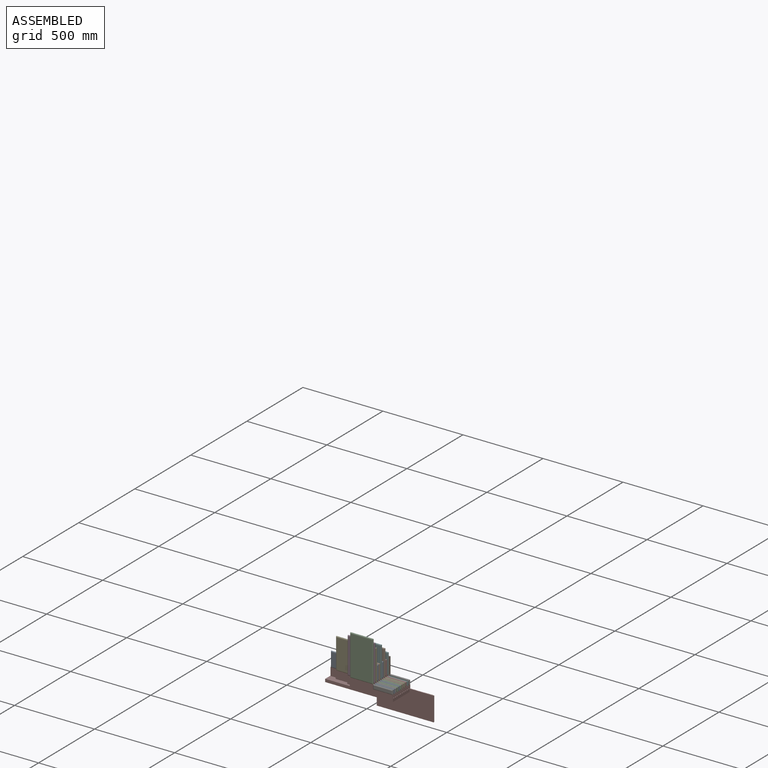
[diagram: assembled view]
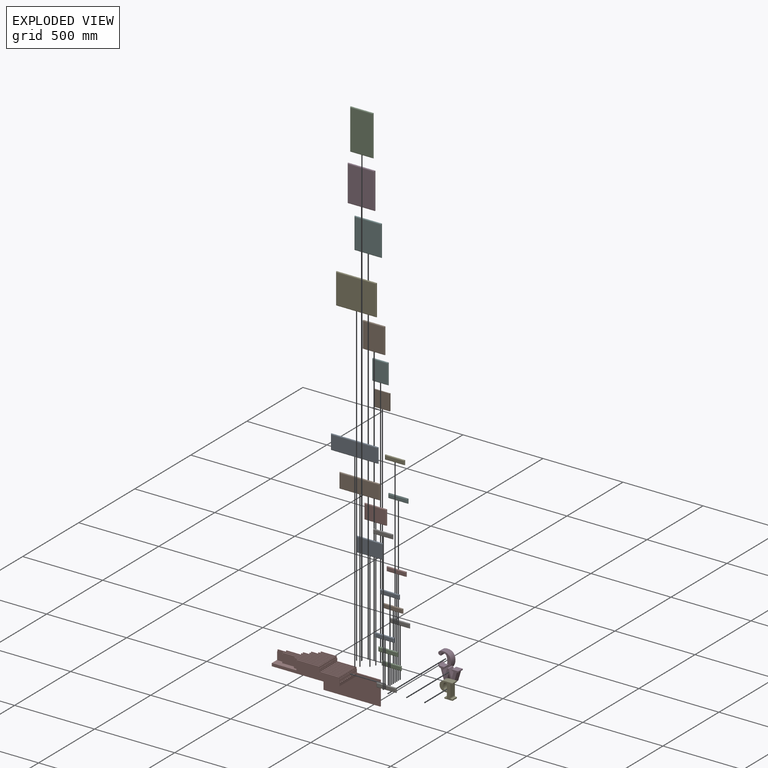
[diagram: exploded view]
GUIDED TOUR — MATED ASSEMBLY (Onshape document 578d2587e4b0dbf8509dc60d, AutoMate assembly 578d2587e4b0dbf8509dc60d_311dc6da7338ea4c76ca1583_a7b92a9273458ecb3439c818_default)

This assembly has 26 components, labeled P0..P25 below (a component is one placed occurrence of a part; the same part can appear more than once), held together by 25 mates. A mate is a constraint between two components; its type names the relative motion it leaves free:
  FASTENED — locks the two components together rigidly (no relative motion).
Axis/direction vectors are unit vectors and 'through' points are millimeter coordinates, both in the assembly's world frame.

MATES
  1. FASTENED "Fastened 22": P0 <-> P7, direction (0.000, 0.000, 1.000) through (-380.98, -88.99, -85.35) mm
  2. FASTENED "Fastened 8": P15 <-> P7, direction (0.000, 0.000, 1.000) through (-380.98, 16.01, -85.35) mm
  3. FASTENED "Fastened 20": P7 <-> P22, direction (0.000, 0.000, 1.000) through (-380.98, -73.99, -85.35) mm
  4. FASTENED "Fastened 1": P4 <-> P7, direction (0.000, -1.000, 0.000) through (-180.15, 46.01, -137.35) mm
  5. FASTENED "Fastened 17": P7 <-> P9, direction (0.000, 0.000, 1.000) through (-385.98, -43.99, -57.35) mm
  6. FASTENED "Fastened 6": P5 <-> P7, direction (0.000, 0.000, -1.000) through (-380.98, 31.01, -85.35) mm
  7. FASTENED "Fastened 14": P7 <-> P18, direction (0.000, 0.000, 1.000) through (-380.98, -28.99, -85.35) mm
  8. FASTENED "Fastened 23": P3 <-> P7, direction (0.000, 0.000, 1.000) through (-385.98, -88.99, -57.35) mm
  9. FASTENED "Fastened 21": P20 <-> P7, direction (0.000, 0.000, 1.000) through (-385.98, -73.99, -57.35) mm
  10. FASTENED "Fastened 4": P6 <-> P7, direction (0.000, 0.000, 1.000) through (-380.98, 46.01, -85.35) mm
  11. FASTENED "Fastened 13": P7 <-> P16, direction (0.000, 0.000, 1.000) through (-385.98, -13.99, -57.35) mm
  12. FASTENED "Fastened 11": P7 <-> P25, direction (0.000, 0.000, 1.000) through (-385.98, 1.01, -57.35) mm
  13. FASTENED "Fastened 10": P12 <-> P7, direction (0.000, 0.000, 1.000) through (-380.98, 1.01, -85.35) mm
  14. FASTENED "Fastened 2": P19 <-> P7, direction (0.000, -1.000, 0.000) through (-300.94, 46.01, -155.95) mm
  15. FASTENED "Fastened 3": P11 <-> P7, direction (0.000, -1.000, 0.000) through (-414.58, 46.01, -136.05) mm
  16. FASTENED "Fastened 16": P24 <-> P7, direction (0.000, 0.000, 1.000) through (-380.98, -43.99, -85.35) mm
  17. FASTENED "Fastened 18": P10 <-> P7, direction (0.000, 0.000, 1.000) through (-380.98, -58.99, -85.35) mm
  18. FASTENED "Fastened 9": P23 <-> P7, direction (0.000, 0.000, 1.000) through (-385.98, 16.01, -57.35) mm
  19. FASTENED "Fastened 7": P21 <-> P7, direction (0.000, 0.000, 1.000) through (-385.98, 31.01, -57.35) mm
  20. FASTENED "Fastened 19": P7 <-> P8, direction (0.000, 0.000, 1.000) through (-385.98, -58.99, -57.35) mm
  21. FASTENED "Fastened 5": P17 <-> P7, direction (0.000, 0.000, -1.000) through (-385.98, 46.01, -57.35) mm
  22. FASTENED "Fastened 25": P7 <-> P2, direction (0.000, 0.000, 1.000) through (-385.98, -103.99, -57.35) mm
  23. FASTENED "Fastened 12": P1 <-> P7, direction (0.000, 0.000, 1.000) through (-380.98, -13.99, -85.35) mm
  24. FASTENED "Fastened 15": P13 <-> P7, direction (0.000, 0.000, 1.000) through (-385.98, -28.99, -57.35) mm
  25. FASTENED "Fastened 24": P14 <-> P7, direction (0.000, 0.000, 1.000) through (-380.98, -103.99, -85.35) mm

ASSEMBLY ORDER
  1. P22 — the base component [order verified]
  2. P18 [order verified]
  3. P7 [order verified]
  4. P10 [order verified]
  5. P6 [order verified]
  6. P1 [order verified]
  7. P24 [order verified]
  8. P15 [order verified]
  9. P0 [order verified]
  10. P16 [order verified]
  11. P23 [order verified]
  12. P9 [order verified]
  13. P8 [order verified]
  14. P17 [order verified]
  15. P21 [order verified]
  16. P25 [order verified]
  17. P20 [order verified]
  18. P13 [order verified]
  19. P14 [order verified]
  20. P3 [order verified]
  21. P12 [order verified]
  22. P2 [order verified]
  23. P5 [order verified]
  24. P19 [order verified]
  25. P11 [order verified]
  26. P4 [order verified]
(P0, P1, P2, P3, P6, P8, P9, P10, P12, P13, P14, P16, P17, P18, P20, P21, P23, P24, P25 verified with a relaxed clearance tolerance: the source model stores slight part interference there.)
Order-tag legend:
  [order verified] — this step's position reverses a verified removal order: the component was checked to insert without passing through the ones already placed.

Of the 26 components, 1 carries the full construction recipe — the FeatureScript program that regenerates the part's solid from scratch; the rest are supplied as boundary geometry only.
Because this assembly has more than 12 components, the tour below covers the 12 most significant ones individually (every recipe-attached component first, then the largest by part volume), in assembly order; the remaining 14 are summarized together in a grouped section at the end.
Each toured component is shown spotlighted twice — in the assembled view, then in the exploded view, where a leader line traces a displaced component back to its assembled socket (saturated green if recipe-attached, orange if geometry-only; every other component desaturated gray) — followed by its recipe or geometry summary and the mates that hold it.
NOTE — this tour is split across 2 documents so each fits a 32k-token context. This is document 1: the component sections continue in the remaining 1 document, each repeating the header above.
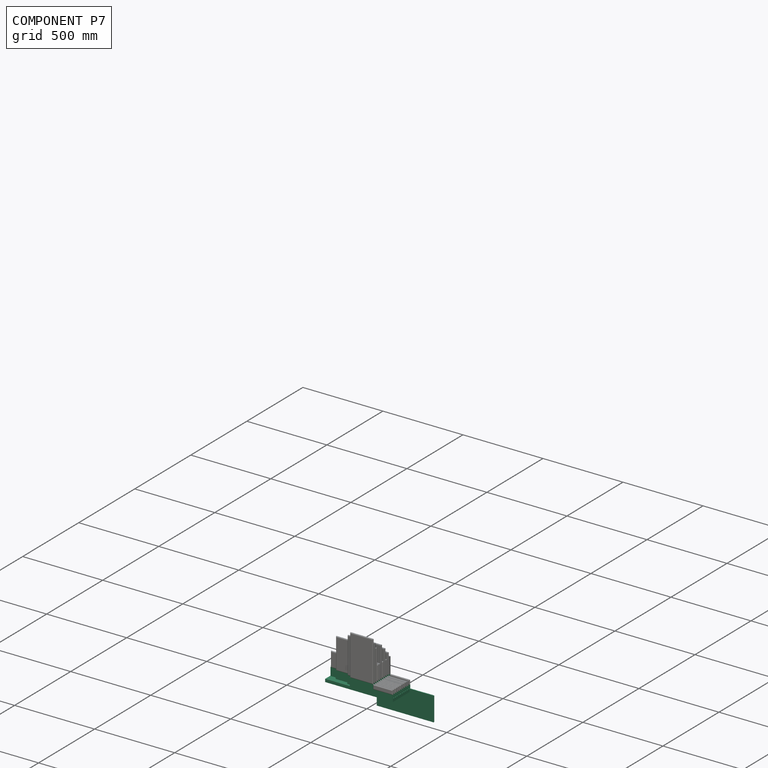
[diagram: component P7 — assembled]
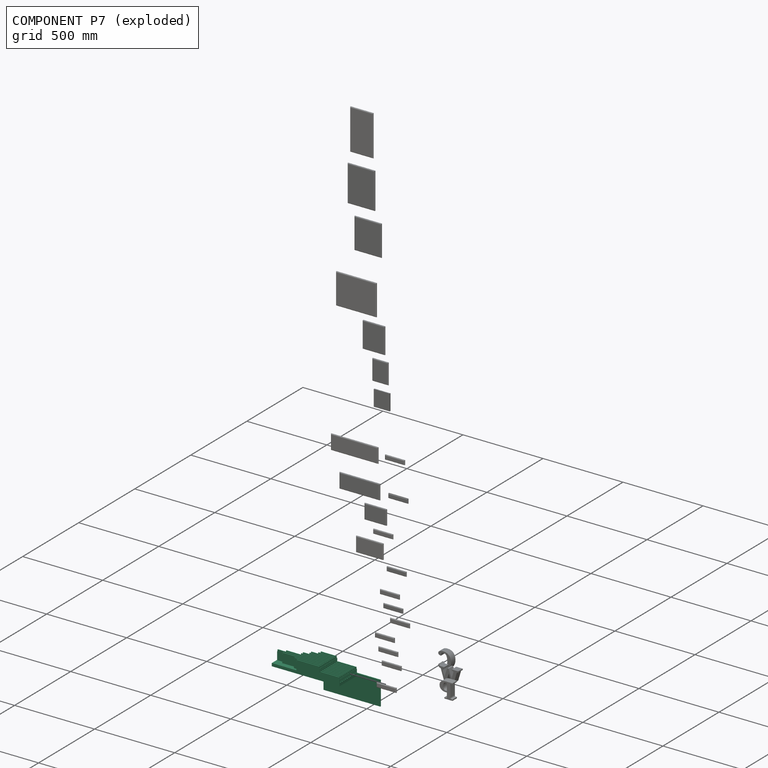
[diagram: component P7 — exploded]
COMPONENT P7 — recipe-attached (CADFS 00199626, mesh-verified: the recipe's output STEP matches this component's geometry to below the mesh-comparison resolution (tessellation chordal tolerance ~0.945 mm)).
Held by: FASTENED mate "Fastened 22" to P0; FASTENED mate "Fastened 8" to P15; FASTENED mate "Fastened 20" to P22; FASTENED mate "Fastened 1" to P4; FASTENED mate "Fastened 17" to P9; FASTENED mate "Fastened 6" to P5; FASTENED mate "Fastened 14" to P18; FASTENED mate "Fastened 23" to P3; FASTENED mate "Fastened 21" to P20; FASTENED mate "Fastened 4" to P6; FASTENED mate "Fastened 13" to P16; FASTENED mate "Fastened 11" to P25; FASTENED mate "Fastened 10" to P12; FASTENED mate "Fastened 2" to P19; FASTENED mate "Fastened 3" to P11; FASTENED mate "Fastened 16" to P24; FASTENED mate "Fastened 18" to P10; FASTENED mate "Fastened 9" to P23; FASTENED mate "Fastened 7" to P21; FASTENED mate "Fastened 19" to P8; FASTENED mate "Fastened 5" to P17; FASTENED mate "Fastened 25" to P2; FASTENED mate "Fastened 12" to P1; FASTENED mate "Fastened 15" to P13; FASTENED mate "Fastened 24" to P14.
Construction recipe (FeatureScript — the CAD program that rebuilds this solid; sketch coordinates are in the units given by the * unit suffixes, e.g. mm):

FeatureScript 1511;
import(path : "onshape/std/geometry.fs", version : "1511.0");
import(path : "onshape/std/common.fs", version : "1511.0");
const mm = millimeter;
const VERTEX = EntityType.VERTEX;
const EDGE = EntityType.EDGE;
const FACE = EntityType.FACE;
const BODY = EntityType.BODY;
function v(x, y){return vector(x, y);}
function OD(order){return orderDisambiguation(order);}
function OSD(set){return originalSetDisambiguation(set);}
function TD(topology){return topologyDisambiguation(topology);}
function TDD(query){return trueDependencyDisambiguation(query);}
function sQuery(a, b, c) {return sketchEntityQuery(a, b, c);}

annotation { "Feature Type Name" : "Feature", "Feature Type Description" : "" }
export const myFeature = defineFeature(function(context is Context, id is Id, definition is map)
    precondition{}
    {
        {
            var Q0;
            Q0=qCreatedBy(makeId("Right.planeOp"),FACE);
            var sketch = newSketch(context, id + "F0", { "sketchPlane" : qUnion([Q0])});
            skLineSegment(sketch, "E0", {"start": v(174.28, 60) * mm, "end": v(179.28, 60) * mm});
            skLineSegment(sketch, "E1", {"start": v(179.28, 60) * mm, "end": v(179.28, 0) * mm});
            skLineSegment(sketch, "E2", {"start": v(179.28, 0) * mm, "end": v(189.28, 0) * mm});
            skLineSegment(sketch, "E3", {"start": v(189.28, 0) * mm, "end": v(189.28, 60) * mm});
            skLineSegment(sketch, "E4", {"start": v(189.28, 60) * mm, "end": v(194.28, 60) * mm});
            skLineSegment(sketch, "E5", {"start": v(194.28, 60) * mm, "end": v(194.28, 0) * mm});
            skLineSegment(sketch, "E6", {"start": v(194.28, 0) * mm, "end": v(204.28, 0) * mm});
            skLineSegment(sketch, "E7", {"start": v(204.28, 0) * mm, "end": v(204.28, 60) * mm});
            skLineSegment(sketch, "E8", {"start": v(204.28, 60) * mm, "end": v(209.28, 60) * mm});
            skLineSegment(sketch, "E9", {"start": v(209.28, 60) * mm, "end": v(209.28, 0) * mm});
            skLineSegment(sketch, "E10", {"start": v(209.28, 0) * mm, "end": v(219.28, 0) * mm});
            skLineSegment(sketch, "E11", {"start": v(219.28, 0) * mm, "end": v(219.28, 60) * mm});
            skLineSegment(sketch, "E12", {"start": v(219.28, 60) * mm, "end": v(224.28, 60) * mm});
            skLineSegment(sketch, "E13", {"start": v(224.28, 60) * mm, "end": v(224.28, 0) * mm});
            skLineSegment(sketch, "E14", {"start": v(224.28, 0) * mm, "end": v(234.28, 0) * mm});
            skLineSegment(sketch, "E15", {"start": v(234.28, 0) * mm, "end": v(234.28, 60) * mm});
            skLineSegment(sketch, "E16", {"start": v(234.28, 60) * mm, "end": v(239.28, 60) * mm});
            skLineSegment(sketch, "E17", {"start": v(239.28, 60) * mm, "end": v(239.28, 0) * mm});
            skLineSegment(sketch, "E18", {"start": v(239.28, 0) * mm, "end": v(249.28, 0) * mm});
            skLineSegment(sketch, "E19", {"start": v(249.28, 0) * mm, "end": v(249.28, 60) * mm});
            skLineSegment(sketch, "E20", {"start": v(249.28, 60) * mm, "end": v(254.28, 60) * mm});
            skLineSegment(sketch, "E21", {"start": v(254.28, 60) * mm, "end": v(254.28, 0) * mm});
            skLineSegment(sketch, "E22", {"start": v(254.28, 0) * mm, "end": v(264.28, 0) * mm});
            skLineSegment(sketch, "E23", {"start": v(264.28, 0) * mm, "end": v(264.28, 60) * mm});
            skLineSegment(sketch, "E24", {"start": v(264.28, 60) * mm, "end": v(269.28, 60) * mm});
            skLineSegment(sketch, "E25", {"start": v(269.28, 60) * mm, "end": v(269.28, 0) * mm});
            skLineSegment(sketch, "E26", {"start": v(269.28, 0) * mm, "end": v(279.28, 0) * mm});
            skLineSegment(sketch, "E27", {"start": v(279.28, 0) * mm, "end": v(279.28, 60) * mm});
            skLineSegment(sketch, "E28", {"start": v(279.28, 60) * mm, "end": v(284.28, 60) * mm});
            skLineSegment(sketch, "E29", {"start": v(284.28, 60) * mm, "end": v(284.28, 0) * mm});
            skLineSegment(sketch, "E30", {"start": v(284.28, 0) * mm, "end": v(294.28, 0) * mm});
            skLineSegment(sketch, "E31", {"start": v(294.28, 0) * mm, "end": v(294.28, 60) * mm});
            skLineSegment(sketch, "E32", {"start": v(294.28, 60) * mm, "end": v(299.28, 60) * mm});
            skLineSegment(sketch, "E33", {"start": v(299.28, 60) * mm, "end": v(299.28, 0) * mm});
            skLineSegment(sketch, "E34", {"start": v(299.28, 0) * mm, "end": v(309.28, 0) * mm});
            skLineSegment(sketch, "E35", {"start": v(309.28, 0) * mm, "end": v(309.28, 60) * mm});
            skLineSegment(sketch, "E36", {"start": v(309.28, 60) * mm, "end": v(314.28, 60) * mm});
            skLineSegment(sketch, "E37", {"start": v(314.28, 60) * mm, "end": v(314.28, 0) * mm});
            skLineSegment(sketch, "E38", {"start": v(314.28, 0) * mm, "end": v(324.28, 0) * mm});
            skLineSegment(sketch, "E39", {"start": v(324.28, 0) * mm, "end": v(324.28, 60) * mm});
            skLineSegment(sketch, "E40", {"start": v(324.28, 60) * mm, "end": v(329.28, 60) * mm});
            skLineSegment(sketch, "E41", {"start": v(329.28, 60) * mm, "end": v(329.28, 60) * mm});
            skLineSegment(sketch, "E42", {"start": v(324.28, -18.06) * mm, "end": v(174.24, -18.06) * mm});
            skLineSegment(sketch, "E43", {"start": v(329.28, 60) * mm, "end": v(329.28, -150) * mm});
            skLineSegment(sketch, "E44", {"start": v(329.28, -150) * mm, "end": v(324.28, -150) * mm});
            skLineSegment(sketch, "E45", {"start": v(324.28, -150) * mm, "end": v(324.28, -18.06) * mm});
            skLineSegment(sketch, "E46", {"start": v(174.28, 60) * mm, "end": v(174.28, -18.06) * mm});
            skSolve(sketch);
        }
        {
            var Q0;
            Q0=makeQuery(id+"F0.imprint","IMPRINT",FACE,{"disambiguationData":[TD([[makeQuery(id+"F0.imprint","IMPRINT",EDGE,{"derivedFrom":sQuery(id+"F0.wireOp",EDGE,"RiP20wC8-9t7q-gec1-XB14-b4tMjAQ6knOq")}),-1.0]])]});
            var Q1;
            Q1=makeQuery(id+"F0.imprint","IMPRINT",FACE,{"disambiguationData":[TD([[makeQuery(id+"F0.imprint","IMPRINT",EDGE,{"derivedFrom":sQuery(id+"F0.wireOp",EDGE,"E0")}),-1.0]])]});
            extrude(context, id + "F1", {"entities" : qUnion([Q0, Q1]), "depth" : 123 * mm});
        }
        {
            var Q0;
            Q0=qSketchRegion(id+"F0",true);
            extrude(context, id + "F2", {"entities" : qUnion([Q0]), "operationType" : NewBodyOperationType.ADD, "oppositeDirection" : true, "depth" : 300 * mm});
        }
        {
            var Q0;
            Q0=makeQuery(id+"F1.opExtrude","SWEPT_FACE",FACE,{"disambiguationData":[OSD([sQuery(id+"F0.wireOp",EDGE,"E43")])]});
            var sketch = newSketch(context, id + "F3", { "sketchPlane" : qUnion([Q0])});
            skCircle(sketch, "E47", {"center": v(-203.34, -30) * mm, "radius": 0.5 * mm});
            skCircle(sketch, "E48", {"center": v(-82.54, -48.6) * mm, "radius": 0.5 * mm});
            skCircle(sketch, "E49", {"center": v(31.1, -28.7) * mm, "radius": 0.5 * mm});
            skSolve(sketch);
        }
        {
            var Q0;
            Q0=qSketchRegion(id+"F3",true);
            extrude(context, id + "F4", {"entities" : qUnion([Q0]), "operationType" : NewBodyOperationType.ADD, "depth" : 1 * mm});
        }
        {
            var Q0;
            Q0=makeQuery(id+"F1.opExtrude","SWEPT_FACE",FACE,{"disambiguationData":[OSD([sQuery(id+"F0.wireOp",EDGE,"E43")])]});
            var sketch = newSketch(context, id + "F5", { "sketchPlane" : qUnion([Q0])});
            skLineSegment(sketch, "E50.bottom", {"start": v(-123, 60) * mm, "end": v(0, 60) * mm});
            skLineSegment(sketch, "E50.top", {"start": v(-123, 32) * mm, "end": v(0, 32) * mm});
            skLineSegment(sketch, "E50.left", {"start": v(-123, 60) * mm, "end": v(-123, 32) * mm});
            skLineSegment(sketch, "E50.right", {"start": v(0, 60) * mm, "end": v(0, 32) * mm});
            skSolve(sketch);
        }
        {
            var Q0;
            Q0=qSketchRegion(id+"F5",true);
            extrude(context, id + "F6", {"entities" : qUnion([Q0]), "operationType" : NewBodyOperationType.REMOVE, "oppositeDirection" : true, "depth" : 300 * mm});
        }
        {
            var Q0;
            Q0=makeQuery(id+"F1.opExtrude","SWEPT_FACE",FACE,{"disambiguationData":[OSD([sQuery(id+"F0.wireOp",EDGE,"E43")])]});
            var sketch = newSketch(context, id + "F7", { "sketchPlane" : qUnion([Q0])});
            skLineSegment(sketch, "E51.bottom", {"start": v(0, 32) * mm, "end": v(-2.5, 32) * mm});
            skLineSegment(sketch, "E51.top", {"start": v(0, 22) * mm, "end": v(-2.5, 22) * mm});
            skLineSegment(sketch, "E51.left", {"start": v(0, 32) * mm, "end": v(0, 22) * mm});
            skLineSegment(sketch, "E51.right", {"start": v(-2.5, 32) * mm, "end": v(-2.5, 22) * mm});
            skLineSegment(sketch, "E52.bottom", {"start": v(0, 60) * mm, "end": v(2.5, 60) * mm});
            skLineSegment(sketch, "E52.top", {"start": v(0, 50) * mm, "end": v(2.5, 50) * mm});
            skLineSegment(sketch, "E52.left", {"start": v(0, 60) * mm, "end": v(0, 50) * mm});
            skLineSegment(sketch, "E52.right", {"start": v(2.5, 60) * mm, "end": v(2.5, 50) * mm});
            skLineSegment(sketch, "E53.bottom", {"start": v(-123, 32) * mm, "end": v(-120.5, 32) * mm});
            skLineSegment(sketch, "E53.top", {"start": v(-123, 22) * mm, "end": v(-120.5, 22) * mm});
            skLineSegment(sketch, "E53.left", {"start": v(-123, 32) * mm, "end": v(-123, 22) * mm});
            skLineSegment(sketch, "E53.right", {"start": v(-120.5, 32) * mm, "end": v(-120.5, 22) * mm});
            skSolve(sketch);
        }
        {
            var Q0;
            Q0=makeQuery(id+"F7.imprint","IMPRINT",FACE,{"disambiguationData":[TD([[makeQuery(id+"F7.imprint","IMPRINT",EDGE,{"derivedFrom":sQuery(id+"F7.wireOp",EDGE,"E51.bottom")}),-1.0]])]});
            var Q1;
            Q1=makeQuery(id+"F7.imprint","IMPRINT",FACE,{"disambiguationData":[TD([[makeQuery(id+"F7.imprint","IMPRINT",EDGE,{"derivedFrom":sQuery(id+"F7.wireOp",EDGE,"E52.bottom")}),-1.0]])]});
            var Q2;
            Q2=makeQuery(id+"F7.imprint","IMPRINT",FACE,{"disambiguationData":[TD([[makeQuery(id+"F7.imprint","IMPRINT",EDGE,{"derivedFrom":sQuery(id+"F7.wireOp",EDGE,"E53.bottom")}),-1.0]])]});
            extrude(context, id + "F8", {"entities" : qUnion([Q0, Q1, Q2]), "operationType" : NewBodyOperationType.REMOVE, "oppositeDirection" : true, "depth" : 300 * mm});
        }
        {
            var Q0;
            Q0=makeQuery(id+"F1.opExtrude","SWEPT_FACE",FACE,{"disambiguationData":[OSD([sQuery(id+"F0.wireOp",EDGE,"E43")])]});
            var sketch = newSketch(context, id + "F9", { "sketchPlane" : qUnion([Q0])});
            skLineSegment(sketch, "E54.bottom", {"start": v(-123, -150) * mm, "end": v(-273, -150) * mm});
            skLineSegment(sketch, "E54.top", {"start": v(-123, 0) * mm, "end": v(-273, 0) * mm});
            skLineSegment(sketch, "E54.left", {"start": v(-123, -150) * mm, "end": v(-123, 0) * mm});
            skLineSegment(sketch, "E54.right", {"start": v(-273, -150) * mm, "end": v(-273, 0) * mm});
            skSolve(sketch);
        }
        {
            var Q0;
            Q0=qSketchRegion(id+"F9",true);
            extrude(context, id + "F10", {"entities" : qUnion([Q0]), "operationType" : NewBodyOperationType.ADD, "oppositeDirection" : true, "depth" : 5 * mm});
        }
        {
            var Q0;
            Q0=makeQuery(id+"F2.opExtrude","CAP_FACE",FACE,{"disambiguationData":[OSD([sQuery(id+"F0.wireOp",EDGE,"E0"),sQuery(id+"F0.wireOp",EDGE,"E1"),sQuery(id+"F0.wireOp",EDGE,"E2"),sQuery(id+"F0.wireOp",EDGE,"E3"),sQuery(id+"F0.wireOp",EDGE,"E4"),sQuery(id+"F0.wireOp",EDGE,"E5"),sQuery(id+"F0.wireOp",EDGE,"E6"),sQuery(id+"F0.wireOp",EDGE,"E7"),sQuery(id+"F0.wireOp",EDGE,"E8"),sQuery(id+"F0.wireOp",EDGE,"E9"),sQuery(id+"F0.wireOp",EDGE,"E10"),sQuery(id+"F0.wireOp",EDGE,"E11"),sQuery(id+"F0.wireOp",EDGE,"E12"),sQuery(id+"F0.wireOp",EDGE,"E13"),sQuery(id+"F0.wireOp",EDGE,"E14"),sQuery(id+"F0.wireOp",EDGE,"E15"),sQuery(id+"F0.wireOp",EDGE,"E16"),sQuery(id+"F0.wireOp",EDGE,"E17"),sQuery(id+"F0.wireOp",EDGE,"E18"),sQuery(id+"F0.wireOp",EDGE,"E19"),sQuery(id+"F0.wireOp",EDGE,"E20"),sQuery(id+"F0.wireOp",EDGE,"E21"),sQuery(id+"F0.wireOp",EDGE,"E22"),sQuery(id+"F0.wireOp",EDGE,"E23"),sQuery(id+"F0.wireOp",EDGE,"E24"),sQuery(id+"F0.wireOp",EDGE,"E25"),sQuery(id+"F0.wireOp",EDGE,"E26"),sQuery(id+"F0.wireOp",EDGE,"E27"),sQuery(id+"F0.wireOp",EDGE,"E28"),sQuery(id+"F0.wireOp",EDGE,"E29"),sQuery(id+"F0.wireOp",EDGE,"E30"),sQuery(id+"F0.wireOp",EDGE,"E31"),sQuery(id+"F0.wireOp",EDGE,"E32"),sQuery(id+"F0.wireOp",EDGE,"E33"),sQuery(id+"F0.wireOp",EDGE,"E34"),sQuery(id+"F0.wireOp",EDGE,"E35"),sQuery(id+"F0.wireOp",EDGE,"E36"),sQuery(id+"F0.wireOp",EDGE,"E37"),sQuery(id+"F0.wireOp",EDGE,"E38"),sQuery(id+"F0.wireOp",EDGE,"E39"),sQuery(id+"F0.wireOp",EDGE,"E40"),sQuery(id+"F0.wireOp",EDGE,"E42"),sQuery(id+"F0.wireOp",EDGE,"E43"),sQuery(id+"F0.wireOp",EDGE,"E44"),sQuery(id+"F0.wireOp",EDGE,"E45"),sQuery(id+"F0.wireOp",EDGE,"E46")])],"isStart":false});
            var sketch = newSketch(context, id + "F11", { "sketchPlane" : qUnion([Q0])});
            skLineSegment(sketch, "E55.bottom", {"start": v(-309.28, 0) * mm, "end": v(-329.28, 0) * mm});
            skLineSegment(sketch, "E55.top", {"start": v(-309.28, 60) * mm, "end": v(-329.28, 60) * mm});
            skLineSegment(sketch, "E55.left", {"start": v(-309.28, 0) * mm, "end": v(-309.28, 60) * mm});
            skLineSegment(sketch, "E55.right", {"start": v(-329.28, 0) * mm, "end": v(-329.28, 60) * mm});
            skSolve(sketch);
        }
        {
            var Q0;
            {var subQ2=sQuery(id+"F11.wireOp",EDGE,"E55.right");Q0=makeQuery(id+"F11.imprint","IMPRINT",FACE,{"disambiguationData":[TD([[makeQuery(id+"F11.imprint","IMPRINT",EDGE,{"derivedFrom":subQ2}),1.0]])]});}
            var Q1;
            {var subQ0=sQuery(id+"F11.wireOp",EDGE,"E55.left");Q1=makeQuery(id+"F11.imprint","IMPRINT",FACE,{"disambiguationData":[TD([[makeQuery(id+"F11.imprint","IMPRINT",EDGE,{"derivedFrom":subQ0}),1.0]])]});}
            extrude(context, id + "F12", {"entities" : qUnion([Q0, Q1]), "operationType" : NewBodyOperationType.REMOVE, "oppositeDirection" : true, "depth" : 197.5 * mm});
        }
        {
            var Q0;
            Q0=makeQuery(id+"F2.opExtrude","CAP_FACE",FACE,{"disambiguationData":[OSD([sQuery(id+"F0.wireOp",EDGE,"E0"),sQuery(id+"F0.wireOp",EDGE,"E1"),sQuery(id+"F0.wireOp",EDGE,"E2"),sQuery(id+"F0.wireOp",EDGE,"E3"),sQuery(id+"F0.wireOp",EDGE,"E4"),sQuery(id+"F0.wireOp",EDGE,"E5"),sQuery(id+"F0.wireOp",EDGE,"E6"),sQuery(id+"F0.wireOp",EDGE,"E7"),sQuery(id+"F0.wireOp",EDGE,"E8"),sQuery(id+"F0.wireOp",EDGE,"E9"),sQuery(id+"F0.wireOp",EDGE,"E10"),sQuery(id+"F0.wireOp",EDGE,"E11"),sQuery(id+"F0.wireOp",EDGE,"E12"),sQuery(id+"F0.wireOp",EDGE,"E13"),sQuery(id+"F0.wireOp",EDGE,"E14"),sQuery(id+"F0.wireOp",EDGE,"E15"),sQuery(id+"F0.wireOp",EDGE,"E16"),sQuery(id+"F0.wireOp",EDGE,"E17"),sQuery(id+"F0.wireOp",EDGE,"E18"),sQuery(id+"F0.wireOp",EDGE,"E19"),sQuery(id+"F0.wireOp",EDGE,"E20"),sQuery(id+"F0.wireOp",EDGE,"E21"),sQuery(id+"F0.wireOp",EDGE,"E22"),sQuery(id+"F0.wireOp",EDGE,"E23"),sQuery(id+"F0.wireOp",EDGE,"E24"),sQuery(id+"F0.wireOp",EDGE,"E25"),sQuery(id+"F0.wireOp",EDGE,"E26"),sQuery(id+"F0.wireOp",EDGE,"E27"),sQuery(id+"F0.wireOp",EDGE,"E28"),sQuery(id+"F0.wireOp",EDGE,"E29"),sQuery(id+"F0.wireOp",EDGE,"E30"),sQuery(id+"F0.wireOp",EDGE,"E31"),sQuery(id+"F0.wireOp",EDGE,"E32"),sQuery(id+"F0.wireOp",EDGE,"E33"),sQuery(id+"F0.wireOp",EDGE,"E34"),sQuery(id+"F0.wireOp",EDGE,"E35"),sQuery(id+"F0.wireOp",EDGE,"E36"),sQuery(id+"F0.wireOp",EDGE,"E37"),sQuery(id+"F0.wireOp",EDGE,"E38"),sQuery(id+"F0.wireOp",EDGE,"E39"),sQuery(id+"F0.wireOp",EDGE,"E40"),sQuery(id+"F0.wireOp",EDGE,"E42"),sQuery(id+"F0.wireOp",EDGE,"E43"),sQuery(id+"F0.wireOp",EDGE,"E44"),sQuery(id+"F0.wireOp",EDGE,"E45"),sQuery(id+"F0.wireOp",EDGE,"E46")])],"isStart":false});
            var sketch = newSketch(context, id + "F13", { "sketchPlane" : qUnion([Q0])});
            skLineSegment(sketch, "E56.bottom", {"start": v(-279.28, 0) * mm, "end": v(-299.28, 0) * mm});
            skLineSegment(sketch, "E56.top", {"start": v(-279.28, 60) * mm, "end": v(-299.28, 60) * mm});
            skLineSegment(sketch, "E56.left", {"start": v(-279.28, 0) * mm, "end": v(-279.28, 60) * mm});
            skLineSegment(sketch, "E56.right", {"start": v(-299.28, 0) * mm, "end": v(-299.28, 60) * mm});
            skSolve(sketch);
        }
        {
            var Q0;
            Q0=qSketchRegion(id+"F13",true);
            extrude(context, id + "F14", {"entities" : qUnion([Q0]), "operationType" : NewBodyOperationType.REMOVE, "oppositeDirection" : true, "depth" : 158.5 * mm});
        }
        {
            var Q0;
            Q0=makeQuery(id+"F2.opExtrude","CAP_FACE",FACE,{"disambiguationData":[OSD([sQuery(id+"F0.wireOp",EDGE,"E0"),sQuery(id+"F0.wireOp",EDGE,"E1"),sQuery(id+"F0.wireOp",EDGE,"E2"),sQuery(id+"F0.wireOp",EDGE,"E3"),sQuery(id+"F0.wireOp",EDGE,"E4"),sQuery(id+"F0.wireOp",EDGE,"E5"),sQuery(id+"F0.wireOp",EDGE,"E6"),sQuery(id+"F0.wireOp",EDGE,"E7"),sQuery(id+"F0.wireOp",EDGE,"E8"),sQuery(id+"F0.wireOp",EDGE,"E9"),sQuery(id+"F0.wireOp",EDGE,"E10"),sQuery(id+"F0.wireOp",EDGE,"E11"),sQuery(id+"F0.wireOp",EDGE,"E12"),sQuery(id+"F0.wireOp",EDGE,"E13"),sQuery(id+"F0.wireOp",EDGE,"E14"),sQuery(id+"F0.wireOp",EDGE,"E15"),sQuery(id+"F0.wireOp",EDGE,"E16"),sQuery(id+"F0.wireOp",EDGE,"E17"),sQuery(id+"F0.wireOp",EDGE,"E18"),sQuery(id+"F0.wireOp",EDGE,"E19"),sQuery(id+"F0.wireOp",EDGE,"E20"),sQuery(id+"F0.wireOp",EDGE,"E21"),sQuery(id+"F0.wireOp",EDGE,"E22"),sQuery(id+"F0.wireOp",EDGE,"E23"),sQuery(id+"F0.wireOp",EDGE,"E24"),sQuery(id+"F0.wireOp",EDGE,"E25"),sQuery(id+"F0.wireOp",EDGE,"E26"),sQuery(id+"F0.wireOp",EDGE,"E27"),sQuery(id+"F0.wireOp",EDGE,"E28"),sQuery(id+"F0.wireOp",EDGE,"E29"),sQuery(id+"F0.wireOp",EDGE,"E30"),sQuery(id+"F0.wireOp",EDGE,"E31"),sQuery(id+"F0.wireOp",EDGE,"E32"),sQuery(id+"F0.wireOp",EDGE,"E33"),sQuery(id+"F0.wireOp",EDGE,"E34"),sQuery(id+"F0.wireOp",EDGE,"E35"),sQuery(id+"F0.wireOp",EDGE,"E36"),sQuery(id+"F0.wireOp",EDGE,"E37"),sQuery(id+"F0.wireOp",EDGE,"E38"),sQuery(id+"F0.wireOp",EDGE,"E39"),sQuery(id+"F0.wireOp",EDGE,"E40"),sQuery(id+"F0.wireOp",EDGE,"E42"),sQuery(id+"F0.wireOp",EDGE,"E43"),sQuery(id+"F0.wireOp",EDGE,"E44"),sQuery(id+"F0.wireOp",EDGE,"E45"),sQuery(id+"F0.wireOp",EDGE,"E46")])],"isStart":false});
            var sketch = newSketch(context, id + "F15", { "sketchPlane" : qUnion([Q0])});
            skLineSegment(sketch, "E57.bottom", {"start": v(-269.28, 60) * mm, "end": v(-249.28, 60) * mm});
            skLineSegment(sketch, "E57.top", {"start": v(-269.28, 0) * mm, "end": v(-249.28, 0) * mm});
            skLineSegment(sketch, "E57.left", {"start": v(-269.28, 60) * mm, "end": v(-269.28, 0) * mm});
            skLineSegment(sketch, "E57.right", {"start": v(-249.28, 60) * mm, "end": v(-249.28, 0) * mm});
            skLineSegment(sketch, "E58.bottom", {"start": v(-194.28, 0) * mm, "end": v(-189.28, 0) * mm});
            skLineSegment(sketch, "E58.top", {"start": v(-194.28, 60) * mm, "end": v(-189.28, 60) * mm});
            skLineSegment(sketch, "E58.left", {"start": v(-194.28, 0) * mm, "end": v(-194.28, 60) * mm});
            skLineSegment(sketch, "E58.right", {"start": v(-189.28, 0) * mm, "end": v(-189.28, 60) * mm});
            skSolve(sketch);
        }
        {
            var Q0;
            Q0=qSketchRegion(id+"F15",true);
            extrude(context, id + "F16", {"entities" : qUnion([Q0]), "operationType" : NewBodyOperationType.REMOVE, "oppositeDirection" : true, "depth" : 127.5 * mm});
        }
        {
            var Q0;
            Q0=makeQuery(id+"F2.opExtrude","CAP_FACE",FACE,{"disambiguationData":[OSD([sQuery(id+"F0.wireOp",EDGE,"E0"),sQuery(id+"F0.wireOp",EDGE,"E1"),sQuery(id+"F0.wireOp",EDGE,"E2"),sQuery(id+"F0.wireOp",EDGE,"E3"),sQuery(id+"F0.wireOp",EDGE,"E4"),sQuery(id+"F0.wireOp",EDGE,"E5"),sQuery(id+"F0.wireOp",EDGE,"E6"),sQuery(id+"F0.wireOp",EDGE,"E7"),sQuery(id+"F0.wireOp",EDGE,"E8"),sQuery(id+"F0.wireOp",EDGE,"E9"),sQuery(id+"F0.wireOp",EDGE,"E10"),sQuery(id+"F0.wireOp",EDGE,"E11"),sQuery(id+"F0.wireOp",EDGE,"E12"),sQuery(id+"F0.wireOp",EDGE,"E13"),sQuery(id+"F0.wireOp",EDGE,"E14"),sQuery(id+"F0.wireOp",EDGE,"E15"),sQuery(id+"F0.wireOp",EDGE,"E16"),sQuery(id+"F0.wireOp",EDGE,"E17"),sQuery(id+"F0.wireOp",EDGE,"E18"),sQuery(id+"F0.wireOp",EDGE,"E19"),sQuery(id+"F0.wireOp",EDGE,"E20"),sQuery(id+"F0.wireOp",EDGE,"E21"),sQuery(id+"F0.wireOp",EDGE,"E22"),sQuery(id+"F0.wireOp",EDGE,"E23"),sQuery(id+"F0.wireOp",EDGE,"E24"),sQuery(id+"F0.wireOp",EDGE,"E25"),sQuery(id+"F0.wireOp",EDGE,"E26"),sQuery(id+"F0.wireOp",EDGE,"E27"),sQuery(id+"F0.wireOp",EDGE,"E28"),sQuery(id+"F0.wireOp",EDGE,"E29"),sQuery(id+"F0.wireOp",EDGE,"E30"),sQuery(id+"F0.wireOp",EDGE,"E31"),sQuery(id+"F0.wireOp",EDGE,"E32"),sQuery(id+"F0.wireOp",EDGE,"E33"),sQuery(id+"F0.wireOp",EDGE,"E34"),sQuery(id+"F0.wireOp",EDGE,"E35"),sQuery(id+"F0.wireOp",EDGE,"E36"),sQuery(id+"F0.wireOp",EDGE,"E37"),sQuery(id+"F0.wireOp",EDGE,"E38"),sQuery(id+"F0.wireOp",EDGE,"E39"),sQuery(id+"F0.wireOp",EDGE,"E40"),sQuery(id+"F0.wireOp",EDGE,"E42"),sQuery(id+"F0.wireOp",EDGE,"E43"),sQuery(id+"F0.wireOp",EDGE,"E44"),sQuery(id+"F0.wireOp",EDGE,"E45"),sQuery(id+"F0.wireOp",EDGE,"E46")])],"isStart":false});
            var sketch = newSketch(context, id + "F17", { "sketchPlane" : qUnion([Q0])});
            skLineSegment(sketch, "E59.bottom", {"start": v(-239.28, 60) * mm, "end": v(-234.28, 60) * mm});
            skLineSegment(sketch, "E59.top", {"start": v(-239.28, 0) * mm, "end": v(-234.28, 0) * mm});
            skLineSegment(sketch, "E59.left", {"start": v(-239.28, 60) * mm, "end": v(-239.28, 0) * mm});
            skLineSegment(sketch, "E59.right", {"start": v(-234.28, 60) * mm, "end": v(-234.28, 0) * mm});
            skLineSegment(sketch, "E60.bottom", {"start": v(-209.28, 60) * mm, "end": v(-204.28, 60) * mm});
            skLineSegment(sketch, "E60.top", {"start": v(-209.28, 0) * mm, "end": v(-204.28, 0) * mm});
            skLineSegment(sketch, "E60.left", {"start": v(-209.28, 60) * mm, "end": v(-209.28, 0) * mm});
            skLineSegment(sketch, "E60.right", {"start": v(-204.28, 60) * mm, "end": v(-204.28, 0) * mm});
            skSolve(sketch);
        }
        {
            var Q0;
            Q0=qSketchRegion(id+"F17",true);
            extrude(context, id + "F18", {"entities" : qUnion([Q0]), "operationType" : NewBodyOperationType.REMOVE, "oppositeDirection" : true, "depth" : 44.5 * mm});
        }
        {
            var Q0;
            Q0=makeQuery(id+"F2.opExtrude","CAP_FACE",FACE,{"disambiguationData":[OSD([sQuery(id+"F0.wireOp",EDGE,"E0"),sQuery(id+"F0.wireOp",EDGE,"E1"),sQuery(id+"F0.wireOp",EDGE,"E2"),sQuery(id+"F0.wireOp",EDGE,"E3"),sQuery(id+"F0.wireOp",EDGE,"E4"),sQuery(id+"F0.wireOp",EDGE,"E5"),sQuery(id+"F0.wireOp",EDGE,"E6"),sQuery(id+"F0.wireOp",EDGE,"E7"),sQuery(id+"F0.wireOp",EDGE,"E8"),sQuery(id+"F0.wireOp",EDGE,"E9"),sQuery(id+"F0.wireOp",EDGE,"E10"),sQuery(id+"F0.wireOp",EDGE,"E11"),sQuery(id+"F0.wireOp",EDGE,"E12"),sQuery(id+"F0.wireOp",EDGE,"E13"),sQuery(id+"F0.wireOp",EDGE,"E14"),sQuery(id+"F0.wireOp",EDGE,"E15"),sQuery(id+"F0.wireOp",EDGE,"E16"),sQuery(id+"F0.wireOp",EDGE,"E17"),sQuery(id+"F0.wireOp",EDGE,"E18"),sQuery(id+"F0.wireOp",EDGE,"E19"),sQuery(id+"F0.wireOp",EDGE,"E20"),sQuery(id+"F0.wireOp",EDGE,"E21"),sQuery(id+"F0.wireOp",EDGE,"E22"),sQuery(id+"F0.wireOp",EDGE,"E23"),sQuery(id+"F0.wireOp",EDGE,"E24"),sQuery(id+"F0.wireOp",EDGE,"E25"),sQuery(id+"F0.wireOp",EDGE,"E26"),sQuery(id+"F0.wireOp",EDGE,"E27"),sQuery(id+"F0.wireOp",EDGE,"E28"),sQuery(id+"F0.wireOp",EDGE,"E29"),sQuery(id+"F0.wireOp",EDGE,"E30"),sQuery(id+"F0.wireOp",EDGE,"E31"),sQuery(id+"F0.wireOp",EDGE,"E32"),sQuery(id+"F0.wireOp",EDGE,"E33"),sQuery(id+"F0.wireOp",EDGE,"E34"),sQuery(id+"F0.wireOp",EDGE,"E35"),sQuery(id+"F0.wireOp",EDGE,"E36"),sQuery(id+"F0.wireOp",EDGE,"E37"),sQuery(id+"F0.wireOp",EDGE,"E38"),sQuery(id+"F0.wireOp",EDGE,"E39"),sQuery(id+"F0.wireOp",EDGE,"E40"),sQuery(id+"F0.wireOp",EDGE,"E42"),sQuery(id+"F0.wireOp",EDGE,"E43"),sQuery(id+"F0.wireOp",EDGE,"E44"),sQuery(id+"F0.wireOp",EDGE,"E45"),sQuery(id+"F0.wireOp",EDGE,"E46")])],"isStart":false});
            var sketch = newSketch(context, id + "F19", { "sketchPlane" : qUnion([Q0])});
            skLineSegment(sketch, "E61.bottom", {"start": v(-219.28, 0) * mm, "end": v(-224.28, 0) * mm});
            skLineSegment(sketch, "E61.top", {"start": v(-219.28, 60) * mm, "end": v(-224.28, 60) * mm});
            skLineSegment(sketch, "E61.left", {"start": v(-219.28, 0) * mm, "end": v(-219.28, 60) * mm});
            skLineSegment(sketch, "E61.right", {"start": v(-224.28, 0) * mm, "end": v(-224.28, 60) * mm});
            skSolve(sketch);
        }
        {
            var Q0;
            Q0=qSketchRegion(id+"F19",true);
            extrude(context, id + "F20", {"entities" : qUnion([Q0]), "operationType" : NewBodyOperationType.REMOVE, "oppositeDirection" : true, "depth" : 1.5 * mm});
        }
        {
            var Q0;
            Q0=makeQuery(id+"F2.opExtrude","CAP_FACE",FACE,{"disambiguationData":[OSD([sQuery(id+"F0.wireOp",EDGE,"E0"),sQuery(id+"F0.wireOp",EDGE,"E1"),sQuery(id+"F0.wireOp",EDGE,"E2"),sQuery(id+"F0.wireOp",EDGE,"E3"),sQuery(id+"F0.wireOp",EDGE,"E4"),sQuery(id+"F0.wireOp",EDGE,"E5"),sQuery(id+"F0.wireOp",EDGE,"E6"),sQuery(id+"F0.wireOp",EDGE,"E7"),sQuery(id+"F0.wireOp",EDGE,"E8"),sQuery(id+"F0.wireOp",EDGE,"E9"),sQuery(id+"F0.wireOp",EDGE,"E10"),sQuery(id+"F0.wireOp",EDGE,"E11"),sQuery(id+"F0.wireOp",EDGE,"E12"),sQuery(id+"F0.wireOp",EDGE,"E13"),sQuery(id+"F0.wireOp",EDGE,"E14"),sQuery(id+"F0.wireOp",EDGE,"E15"),sQuery(id+"F0.wireOp",EDGE,"E16"),sQuery(id+"F0.wireOp",EDGE,"E17"),sQuery(id+"F0.wireOp",EDGE,"E18"),sQuery(id+"F0.wireOp",EDGE,"E19"),sQuery(id+"F0.wireOp",EDGE,"E20"),sQuery(id+"F0.wireOp",EDGE,"E21"),sQuery(id+"F0.wireOp",EDGE,"E22"),sQuery(id+"F0.wireOp",EDGE,"E23"),sQuery(id+"F0.wireOp",EDGE,"E24"),sQuery(id+"F0.wireOp",EDGE,"E25"),sQuery(id+"F0.wireOp",EDGE,"E26"),sQuery(id+"F0.wireOp",EDGE,"E27"),sQuery(id+"F0.wireOp",EDGE,"E28"),sQuery(id+"F0.wireOp",EDGE,"E29"),sQuery(id+"F0.wireOp",EDGE,"E30"),sQuery(id+"F0.wireOp",EDGE,"E31"),sQuery(id+"F0.wireOp",EDGE,"E32"),sQuery(id+"F0.wireOp",EDGE,"E33"),sQuery(id+"F0.wireOp",EDGE,"E34"),sQuery(id+"F0.wireOp",EDGE,"E35"),sQuery(id+"F0.wireOp",EDGE,"E36"),sQuery(id+"F0.wireOp",EDGE,"E37"),sQuery(id+"F0.wireOp",EDGE,"E38"),sQuery(id+"F0.wireOp",EDGE,"E39"),sQuery(id+"F0.wireOp",EDGE,"E40"),sQuery(id+"F0.wireOp",EDGE,"E42"),sQuery(id+"F0.wireOp",EDGE,"E43"),sQuery(id+"F0.wireOp",EDGE,"E44"),sQuery(id+"F0.wireOp",EDGE,"E45"),sQuery(id+"F0.wireOp",EDGE,"E46")])],"isStart":false});
            var sketch = newSketch(context, id + "F21", { "sketchPlane" : qUnion([Q0])});
            skLineSegment(sketch, "E62.bottom", {"start": v(-179.28, 0) * mm, "end": v(-174.28, 0) * mm});
            skLineSegment(sketch, "E62.top", {"start": v(-179.28, 60) * mm, "end": v(-174.28, 60) * mm});
            skLineSegment(sketch, "E62.left", {"start": v(-179.28, 0) * mm, "end": v(-179.28, 60) * mm});
            skLineSegment(sketch, "E62.right", {"start": v(-174.28, 0) * mm, "end": v(-174.28, 60) * mm});
            skSolve(sketch);
        }
        {
            var Q0;
            Q0=qSketchRegion(id+"F21",true);
            extrude(context, id + "F22", {"entities" : qUnion([Q0]), "operationType" : NewBodyOperationType.REMOVE, "oppositeDirection" : true, "depth" : 153.5 * mm});
        }
        {
            var Q0;
            Q0=makeQuery(id+"F20.boolean.opBoolean","COPY",FACE,{"derivedFrom":makeQuery(id+"F20.opExtrude","CAP_FACE",FACE,{"disambiguationData":[OSD([sQuery(id+"F19.wireOp",EDGE,"E61.bottom"),sQuery(id+"F19.wireOp",EDGE,"E61.top"),sQuery(id+"F19.wireOp",EDGE,"E61.left"),sQuery(id+"F19.wireOp",EDGE,"E61.right")])],"isStart":false})});
            var sketch = newSketch(context, id + "F23", { "sketchPlane" : qUnion([Q0])});
            skLineSegment(sketch, "E63.bottom", {"start": v(-224.28, 60) * mm, "end": v(-219.28, 60) * mm});
            skLineSegment(sketch, "E63.top", {"start": v(-224.28, 50) * mm, "end": v(-219.28, 50) * mm});
            skLineSegment(sketch, "E63.left", {"start": v(-224.28, 60) * mm, "end": v(-224.28, 50) * mm});
            skLineSegment(sketch, "E63.right", {"start": v(-219.28, 60) * mm, "end": v(-219.28, 50) * mm});
            skSolve(sketch);
        }
        {
            var Q0;
            Q0=qSketchRegion(id+"F23",true);
            extrude(context, id + "F24", {"entities" : qUnion([Q0]), "operationType" : NewBodyOperationType.REMOVE, "oppositeDirection" : true, "depth" : 2.5 * mm});
        }
        {
            var Q0;
            Q0=makeQuery(id+"F18.boolean.opBoolean","COPY",FACE,{"derivedFrom":makeQuery(id+"F18.opExtrude","CAP_FACE",FACE,{"disambiguationData":[OSD([sQuery(id+"F17.wireOp",EDGE,"E59.bottom"),sQuery(id+"F17.wireOp",EDGE,"E59.top"),sQuery(id+"F17.wireOp",EDGE,"E59.left"),sQuery(id+"F17.wireOp",EDGE,"E59.right")])],"isStart":false})});
            var sketch = newSketch(context, id + "F25", { "sketchPlane" : qUnion([Q0])});
            skLineSegment(sketch, "E64.bottom", {"start": v(-239.28, 60) * mm, "end": v(-234.28, 60) * mm});
            skLineSegment(sketch, "E64.top", {"start": v(-239.28, 50) * mm, "end": v(-234.28, 50) * mm});
            skLineSegment(sketch, "E64.left", {"start": v(-239.28, 60) * mm, "end": v(-239.28, 50) * mm});
            skLineSegment(sketch, "E64.right", {"start": v(-234.28, 60) * mm, "end": v(-234.28, 50) * mm});
            skSolve(sketch);
        }
        {
            var Q0;
            Q0=qSketchRegion(id+"F25",true);
            extrude(context, id + "F26", {"entities" : qUnion([Q0]), "operationType" : NewBodyOperationType.REMOVE, "oppositeDirection" : true, "depth" : 2.5 * mm});
        }
        {
            var Q0;
            Q0=makeQuery(id+"F18.boolean.opBoolean","COPY",FACE,{"derivedFrom":makeQuery(id+"F18.opExtrude","CAP_FACE",FACE,{"disambiguationData":[OSD([sQuery(id+"F17.wireOp",EDGE,"E60.bottom"),sQuery(id+"F17.wireOp",EDGE,"E60.top"),sQuery(id+"F17.wireOp",EDGE,"E60.left"),sQuery(id+"F17.wireOp",EDGE,"E60.right")])],"isStart":false})});
            var sketch = newSketch(context, id + "F27", { "sketchPlane" : qUnion([Q0])});
            skLineSegment(sketch, "E65.bottom", {"start": v(-209.28, 60) * mm, "end": v(-204.28, 60) * mm});
            skLineSegment(sketch, "E65.top", {"start": v(-209.28, 50) * mm, "end": v(-204.28, 50) * mm});
            skLineSegment(sketch, "E65.left", {"start": v(-209.28, 60) * mm, "end": v(-209.28, 50) * mm});
            skLineSegment(sketch, "E65.right", {"start": v(-204.28, 60) * mm, "end": v(-204.28, 50) * mm});
            skSolve(sketch);
        }
        {
            var Q0;
            Q0=qSketchRegion(id+"F27",true);
            extrude(context, id + "F28", {"entities" : qUnion([Q0]), "operationType" : NewBodyOperationType.REMOVE, "oppositeDirection" : true, "depth" : 2.5 * mm});
        }
        {
            var Q0;
            {var subQ7=sQuery(id+"F0.wireOp",EDGE,"E19");var subQ10=sQuery(id+"F15.wireOp",EDGE,"E57.top");Q0=makeQuery(id+"F16.boolean.opBoolean","COPY",FACE,{"disambiguationData":[TD([makeQuery(id+"F1.opExtrude","SWEPT_FACE",FACE,{"disambiguationData":[OSD([subQ7])]})])],"derivedFrom":makeQuery(id+"F16.opExtrude","CAP_FACE",FACE,{"disambiguationData":[OSD([sQuery(id+"F15.wireOp",EDGE,"E57.bottom"),subQ10,sQuery(id+"F15.wireOp",EDGE,"E57.left"),sQuery(id+"F15.wireOp",EDGE,"E57.right")])],"isStart":false})});}
            var sketch = newSketch(context, id + "F29", { "sketchPlane" : qUnion([Q0])});
            skLineSegment(sketch, "E66.bottom", {"start": v(-254.28, 60) * mm, "end": v(-249.28, 60) * mm});
            skLineSegment(sketch, "E66.top", {"start": v(-254.28, 50) * mm, "end": v(-249.28, 50) * mm});
            skLineSegment(sketch, "E66.left", {"start": v(-254.28, 60) * mm, "end": v(-254.28, 50) * mm});
            skLineSegment(sketch, "E66.right", {"start": v(-249.28, 60) * mm, "end": v(-249.28, 50) * mm});
            skSolve(sketch);
        }
        {
            var Q0;
            Q0=qSketchRegion(id+"F29",true);
            extrude(context, id + "F30", {"entities" : qUnion([Q0]), "operationType" : NewBodyOperationType.REMOVE, "oppositeDirection" : true, "depth" : 2.5 * mm});
        }
        {
            var Q0;
            Q0=makeQuery(id+"F16.boolean.opBoolean","COPY",FACE,{"derivedFrom":makeQuery(id+"F16.opExtrude","CAP_FACE",FACE,{"disambiguationData":[OSD([sQuery(id+"F15.wireOp",EDGE,"E58.bottom"),sQuery(id+"F15.wireOp",EDGE,"E58.top"),sQuery(id+"F15.wireOp",EDGE,"E58.left"),sQuery(id+"F15.wireOp",EDGE,"E58.right")])],"isStart":false})});
            var sketch = newSketch(context, id + "F31", { "sketchPlane" : qUnion([Q0])});
            skLineSegment(sketch, "E67.bottom", {"start": v(-194.28, 60) * mm, "end": v(-189.28, 60) * mm});
            skLineSegment(sketch, "E67.top", {"start": v(-194.28, 50) * mm, "end": v(-189.28, 50) * mm});
            skLineSegment(sketch, "E67.left", {"start": v(-194.28, 60) * mm, "end": v(-194.28, 50) * mm});
            skLineSegment(sketch, "E67.right", {"start": v(-189.28, 60) * mm, "end": v(-189.28, 50) * mm});
            skSolve(sketch);
        }
        {
            var Q0;
            Q0=qSketchRegion(id+"F31",true);
            extrude(context, id + "F32", {"entities" : qUnion([Q0]), "operationType" : NewBodyOperationType.REMOVE, "oppositeDirection" : true, "depth" : 2.5 * mm});
        }
        {
            var Q0;
            {var subQ3=sQuery(id+"F0.wireOp",EDGE,"E23");var subQ10=sQuery(id+"F15.wireOp",EDGE,"E57.top");Q0=makeQuery(id+"F16.boolean.opBoolean","COPY",FACE,{"disambiguationData":[TD([makeQuery(id+"F1.opExtrude","SWEPT_FACE",FACE,{"disambiguationData":[OSD([subQ3])]})])],"derivedFrom":makeQuery(id+"F16.opExtrude","CAP_FACE",FACE,{"disambiguationData":[OSD([sQuery(id+"F15.wireOp",EDGE,"E57.bottom"),subQ10,sQuery(id+"F15.wireOp",EDGE,"E57.left"),sQuery(id+"F15.wireOp",EDGE,"E57.right")])],"isStart":false})});}
            var sketch = newSketch(context, id + "F33", { "sketchPlane" : qUnion([Q0])});
            skLineSegment(sketch, "E68.bottom", {"start": v(-269.28, 60) * mm, "end": v(-264.28, 60) * mm});
            skLineSegment(sketch, "E68.top", {"start": v(-269.28, 50) * mm, "end": v(-264.28, 50) * mm});
            skLineSegment(sketch, "E68.left", {"start": v(-269.28, 60) * mm, "end": v(-269.28, 50) * mm});
            skLineSegment(sketch, "E68.right", {"start": v(-264.28, 60) * mm, "end": v(-264.28, 50) * mm});
            skSolve(sketch);
        }
        {
            var Q0;
            Q0=qSketchRegion(id+"F33",true);
            extrude(context, id + "F34", {"entities" : qUnion([Q0]), "operationType" : NewBodyOperationType.REMOVE, "oppositeDirection" : true, "depth" : 2.5 * mm});
        }
        {
            var Q0;
            Q0=makeQuery(id+"F22.boolean.opBoolean","COPY",FACE,{"derivedFrom":makeQuery(id+"F22.opExtrude","CAP_FACE",FACE,{"disambiguationData":[OSD([sQuery(id+"F21.wireOp",EDGE,"E62.bottom"),sQuery(id+"F21.wireOp",EDGE,"E62.top"),sQuery(id+"F21.wireOp",EDGE,"E62.left"),sQuery(id+"F21.wireOp",EDGE,"E62.right")])],"isStart":false})});
            var sketch = newSketch(context, id + "F35", { "sketchPlane" : qUnion([Q0])});
            skLineSegment(sketch, "E69.bottom", {"start": v(-179.28, 60) * mm, "end": v(-174.28, 60) * mm});
            skLineSegment(sketch, "E69.top", {"start": v(-179.28, 50) * mm, "end": v(-174.28, 50) * mm});
            skLineSegment(sketch, "E69.left", {"start": v(-179.28, 60) * mm, "end": v(-179.28, 50) * mm});
            skLineSegment(sketch, "E69.right", {"start": v(-174.28, 60) * mm, "end": v(-174.28, 50) * mm});
            skSolve(sketch);
        }
        {
            var Q0;
            Q0=qSketchRegion(id+"F35",true);
            extrude(context, id + "F36", {"entities" : qUnion([Q0]), "operationType" : NewBodyOperationType.REMOVE, "oppositeDirection" : true, "depth" : 2.5 * mm});
        }
        {
            var Q0;
            {var subQ3=sQuery(id+"F0.wireOp",EDGE,"E27");var subQ7=sQuery(id+"F13.wireOp",EDGE,"E56.bottom");Q0=makeQuery(id+"F14.boolean.opBoolean","COPY",FACE,{"disambiguationData":[TD([makeQuery(id+"F1.opExtrude","SWEPT_FACE",FACE,{"disambiguationData":[OSD([subQ3])]})])],"derivedFrom":makeQuery(id+"F14.opExtrude","CAP_FACE",FACE,{"disambiguationData":[OSD([subQ7,sQuery(id+"F13.wireOp",EDGE,"E56.top"),sQuery(id+"F13.wireOp",EDGE,"E56.left"),sQuery(id+"F13.wireOp",EDGE,"E56.right")])],"isStart":false})});}
            var sketch = newSketch(context, id + "F37", { "sketchPlane" : qUnion([Q0])});
            skLineSegment(sketch, "E70.bottom", {"start": v(-284.28, 60) * mm, "end": v(-279.28, 60) * mm});
            skLineSegment(sketch, "E70.top", {"start": v(-284.28, 50) * mm, "end": v(-279.28, 50) * mm});
            skLineSegment(sketch, "E70.left", {"start": v(-284.28, 60) * mm, "end": v(-284.28, 50) * mm});
            skLineSegment(sketch, "E70.right", {"start": v(-279.28, 60) * mm, "end": v(-279.28, 50) * mm});
            skSolve(sketch);
        }
        {
            var Q0;
            Q0=qSketchRegion(id+"F37",true);
            extrude(context, id + "F38", {"entities" : qUnion([Q0]), "operationType" : NewBodyOperationType.REMOVE, "oppositeDirection" : true, "depth" : 2.5 * mm});
        }
        {
            var Q0;
            {var subQ0=sQuery(id+"F0.wireOp",EDGE,"E31");var subQ7=sQuery(id+"F13.wireOp",EDGE,"E56.bottom");Q0=makeQuery(id+"F14.boolean.opBoolean","COPY",FACE,{"disambiguationData":[TD([makeQuery(id+"F1.opExtrude","SWEPT_FACE",FACE,{"disambiguationData":[OSD([subQ0])]})])],"derivedFrom":makeQuery(id+"F14.opExtrude","CAP_FACE",FACE,{"disambiguationData":[OSD([subQ7,sQuery(id+"F13.wireOp",EDGE,"E56.top"),sQuery(id+"F13.wireOp",EDGE,"E56.left"),sQuery(id+"F13.wireOp",EDGE,"E56.right")])],"isStart":false})});}
            var sketch = newSketch(context, id + "F39", { "sketchPlane" : qUnion([Q0])});
            skLineSegment(sketch, "E71.bottom", {"start": v(-299.28, 60) * mm, "end": v(-294.28, 60) * mm});
            skLineSegment(sketch, "E71.top", {"start": v(-299.28, 50) * mm, "end": v(-294.28, 50) * mm});
            skLineSegment(sketch, "E71.left", {"start": v(-299.28, 60) * mm, "end": v(-299.28, 50) * mm});
            skLineSegment(sketch, "E71.right", {"start": v(-294.28, 60) * mm, "end": v(-294.28, 50) * mm});
            skSolve(sketch);
        }
        {
            var Q0;
            Q0=qSketchRegion(id+"F39",true);
            extrude(context, id + "F40", {"entities" : qUnion([Q0]), "operationType" : NewBodyOperationType.REMOVE, "oppositeDirection" : true, "depth" : 2.5 * mm});
        }
        {
            var Q0;
            Q0=makeQuery(id+"F12.boolean.opBoolean","COPY",FACE,{"derivedFrom":makeQuery(id+"F12.opExtrude","CAP_FACE",FACE,{"disambiguationData":[OSD([sQuery(id+"F0.wireOp",EDGE,"E37"),sQuery(id+"F11.wireOp",EDGE,"E55.bottom"),sQuery(id+"F11.wireOp",EDGE,"E55.top"),sQuery(id+"F11.wireOp",EDGE,"E55.left")])],"isStart":false})});
            var sketch = newSketch(context, id + "F41", { "sketchPlane" : qUnion([Q0])});
            skLineSegment(sketch, "E72.bottom", {"start": v(-314.28, 60) * mm, "end": v(-309.28, 60) * mm});
            skLineSegment(sketch, "E72.top", {"start": v(-314.28, 50) * mm, "end": v(-309.28, 50) * mm});
            skLineSegment(sketch, "E72.left", {"start": v(-314.28, 60) * mm, "end": v(-314.28, 50) * mm});
            skLineSegment(sketch, "E72.right", {"start": v(-309.28, 60) * mm, "end": v(-309.28, 50) * mm});
            skSolve(sketch);
        }
        {
            var Q0;
            Q0=qSketchRegion(id+"F41",true);
            extrude(context, id + "F42", {"entities" : qUnion([Q0]), "operationType" : NewBodyOperationType.ADD, "depth" : 2.5 * mm});
        }
        {
            var Q0;
            Q0=makeQuery(id+"F12.boolean.opBoolean","COPY",FACE,{"derivedFrom":makeQuery(id+"F12.opExtrude","CAP_FACE",FACE,{"disambiguationData":[OSD([sQuery(id+"F0.wireOp",EDGE,"E39"),sQuery(id+"F11.wireOp",EDGE,"E55.bottom"),sQuery(id+"F11.wireOp",EDGE,"E55.top"),sQuery(id+"F11.wireOp",EDGE,"E55.right")])],"isStart":false})});
            var sketch = newSketch(context, id + "F43", { "sketchPlane" : qUnion([Q0])});
            skLineSegment(sketch, "E73.bottom", {"start": v(-329.28, 60) * mm, "end": v(-324.28, 60) * mm});
            skLineSegment(sketch, "E73.top", {"start": v(-329.28, 50) * mm, "end": v(-324.28, 50) * mm});
            skLineSegment(sketch, "E73.left", {"start": v(-329.28, 60) * mm, "end": v(-329.28, 50) * mm});
            skLineSegment(sketch, "E73.right", {"start": v(-324.28, 60) * mm, "end": v(-324.28, 50) * mm});
            skSolve(sketch);
        }
        {
            var Q0;
            Q0=qSketchRegion(id+"F43",true);
            extrude(context, id + "F44", {"entities" : qUnion([Q0]), "operationType" : NewBodyOperationType.REMOVE, "oppositeDirection" : true, "depth" : 2.5 * mm});
        }
        {
            var Q0;
            {var subQ0=sQuery(id+"F0.wireOp",EDGE,"E43");Q0=makeQuery(id+"F10.boolean.opBoolean","MERGE",FACE,{"derivedFrom":[makeQuery(id+"F2.boolean.opBoolean","MERGE",FACE,{"derivedFrom":[makeQuery(id+"F1.opExtrude","SWEPT_FACE",FACE,{"disambiguationData":[OSD([subQ0])]}),makeQuery(id+"F2.opExtrude","SWEPT_FACE",FACE,{"disambiguationData":[OSD([subQ0])]})]}),makeQuery(id+"F10.opExtrude","CAP_FACE",FACE,{"disambiguationData":[OSD([sQuery(id+"F9.wireOp",EDGE,"E54.bottom"),sQuery(id+"F9.wireOp",EDGE,"E54.top"),sQuery(id+"F9.wireOp",EDGE,"E54.left"),sQuery(id+"F9.wireOp",EDGE,"E54.right")])],"isStart":true})]});}
            var sketch = newSketch(context, id + "F45", { "sketchPlane" : qUnion([Q0])});
            skLineSegment(sketch, "E74.bottom", {"start": v(300, -150) * mm, "end": v(82.43, -150) * mm});
            skLineSegment(sketch, "E74.top", {"start": v(300, -18.06) * mm, "end": v(82.43, -18.06) * mm});
            skLineSegment(sketch, "E74.left", {"start": v(300, -150) * mm, "end": v(300, -18.06) * mm});
            skLineSegment(sketch, "E74.right", {"start": v(82.43, -150) * mm, "end": v(82.43, -18.06) * mm});
            skSolve(sketch);
        }
        {
            var Q0;
            Q0=qSketchRegion(id+"F45",true);
            extrude(context, id + "F46", {"entities" : qUnion([Q0]), "operationType" : NewBodyOperationType.REMOVE, "oppositeDirection" : true, "depth" : 5 * mm});
        }
    });
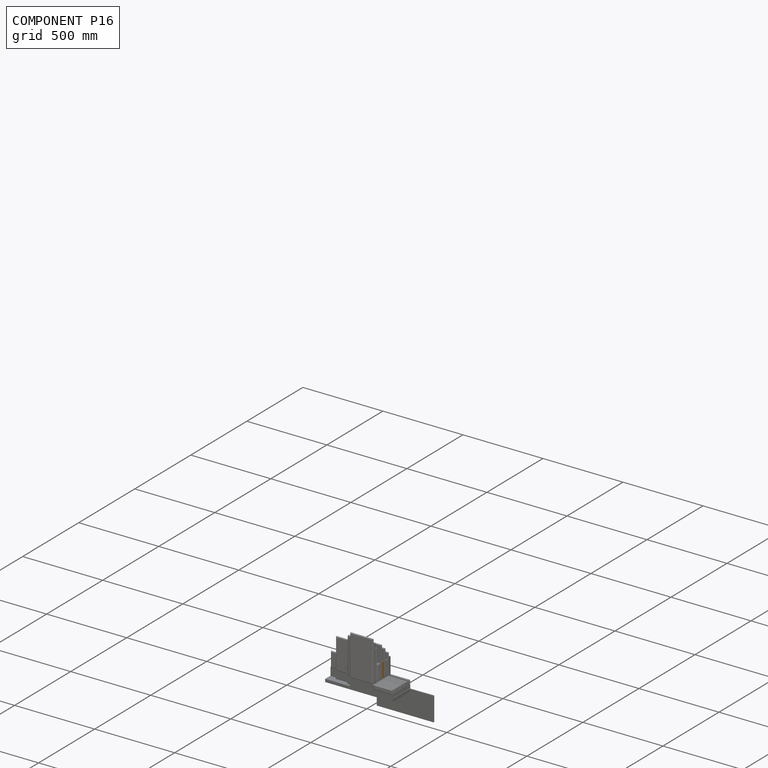
[diagram: component P16 — assembled]
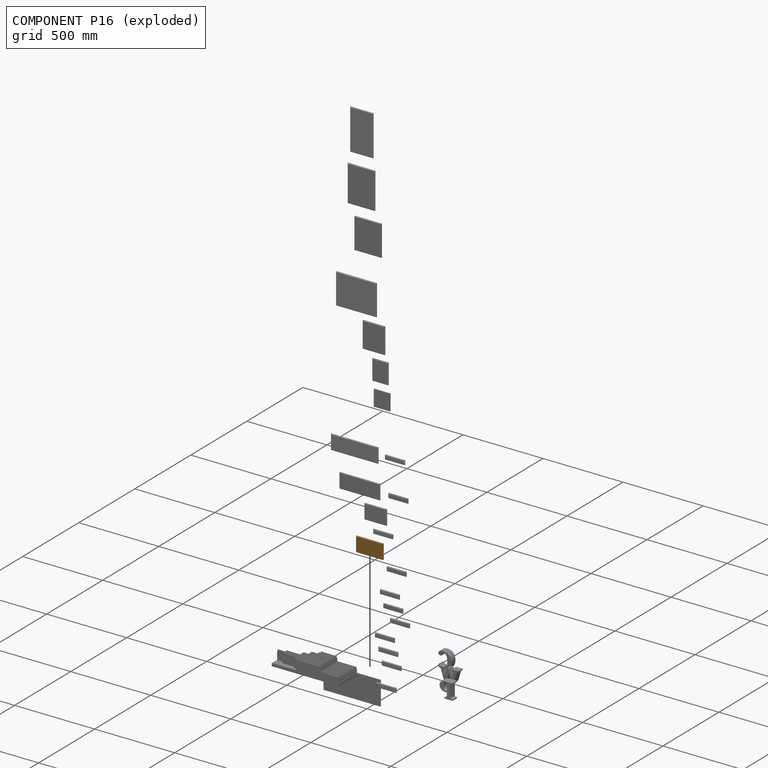
[diagram: component P16 — exploded]
COMPONENT P16 — geometry summary (no construction recipe available for this part):
  bounding box: 170.0 x 93.0 x 10.0 mm
  B-rep topology: 1 solid, 11 faces, 48 edges
  volume: 78068 mm^3 (49% of its bounding box)
  symmetry: 2-fold rotationally symmetric about the z axis; mirror-symmetric across its x mid-plane, y mid-plane
Held by: FASTENED mate "Fastened 13" to P7.
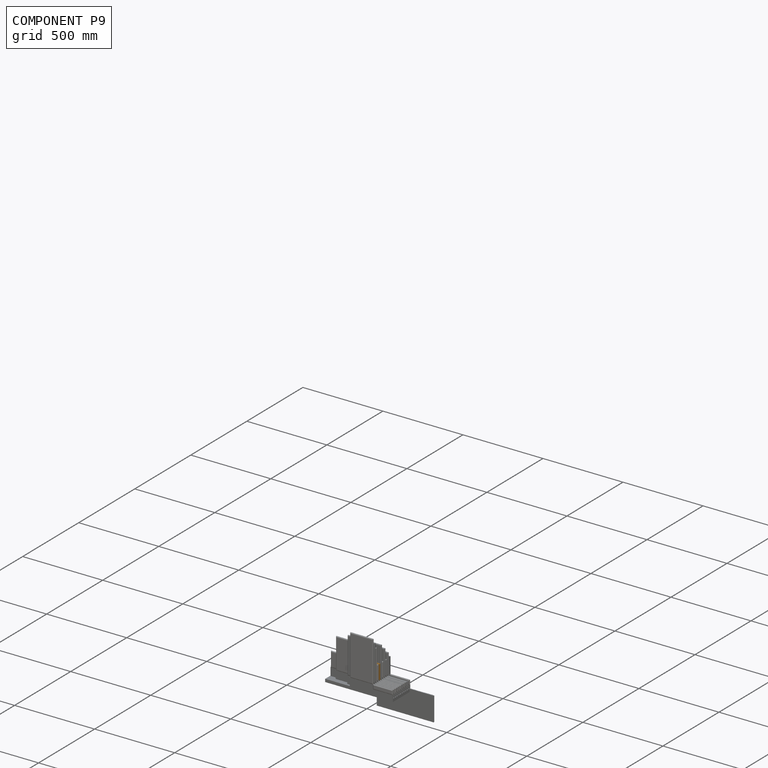
[diagram: component P9 — assembled]
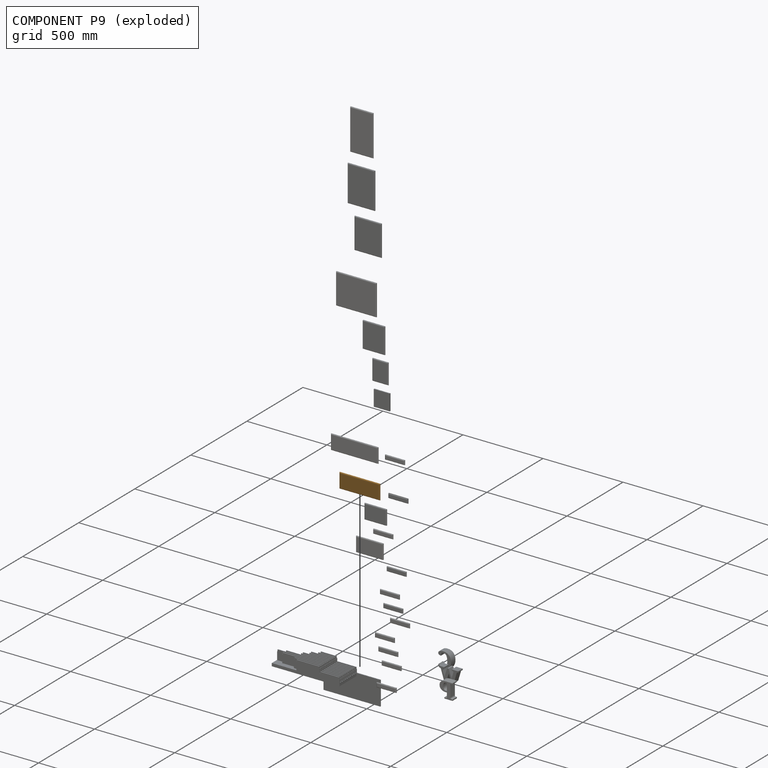
[diagram: component P9 — exploded]
COMPONENT P9 — geometry summary (no construction recipe available for this part):
  bounding box: 253.0 x 93.0 x 10.0 mm
  B-rep topology: 1 solid, 11 faces, 48 edges
  volume: 116010 mm^3 (49% of its bounding box)
  symmetry: 2-fold rotationally symmetric about the z axis; mirror-symmetric across its x mid-plane, y mid-plane
Held by: FASTENED mate "Fastened 17" to P7.
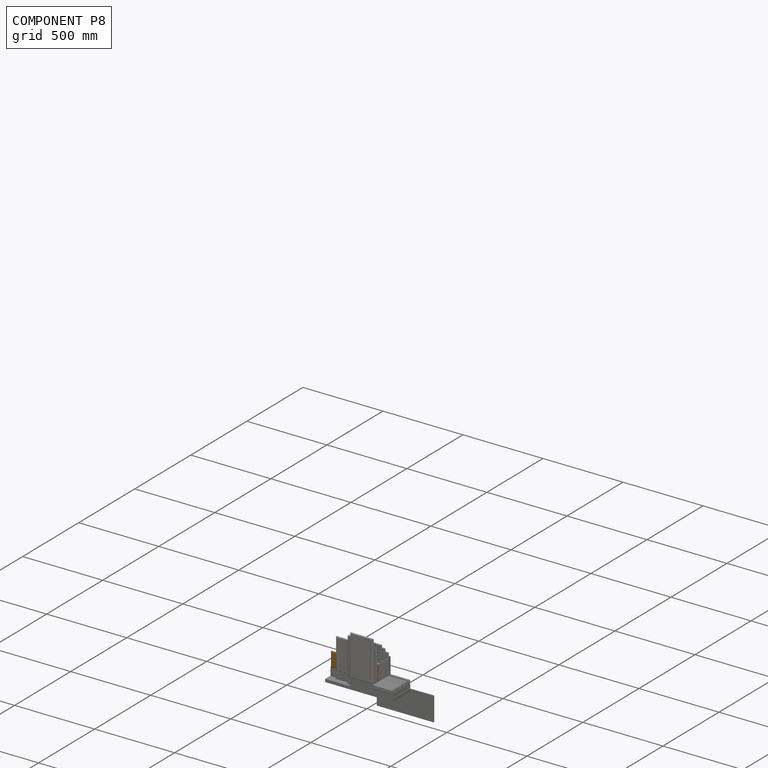
[diagram: component P8 — assembled]
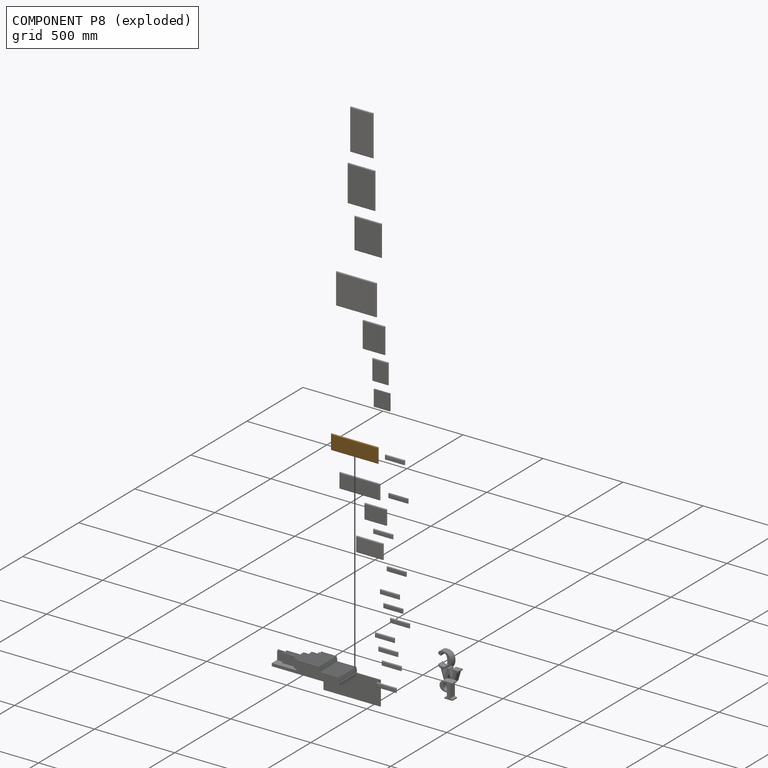
[diagram: component P8 — exploded]
COMPONENT P8 — geometry summary (no construction recipe available for this part):
  bounding box: 296.0 x 93.0 x 10.0 mm
  B-rep topology: 1 solid, 11 faces, 48 edges
  volume: 135666 mm^3 (49% of its bounding box)
  symmetry: 2-fold rotationally symmetric about the z axis; mirror-symmetric across its x mid-plane, y mid-plane
Held by: FASTENED mate "Fastened 19" to P7.
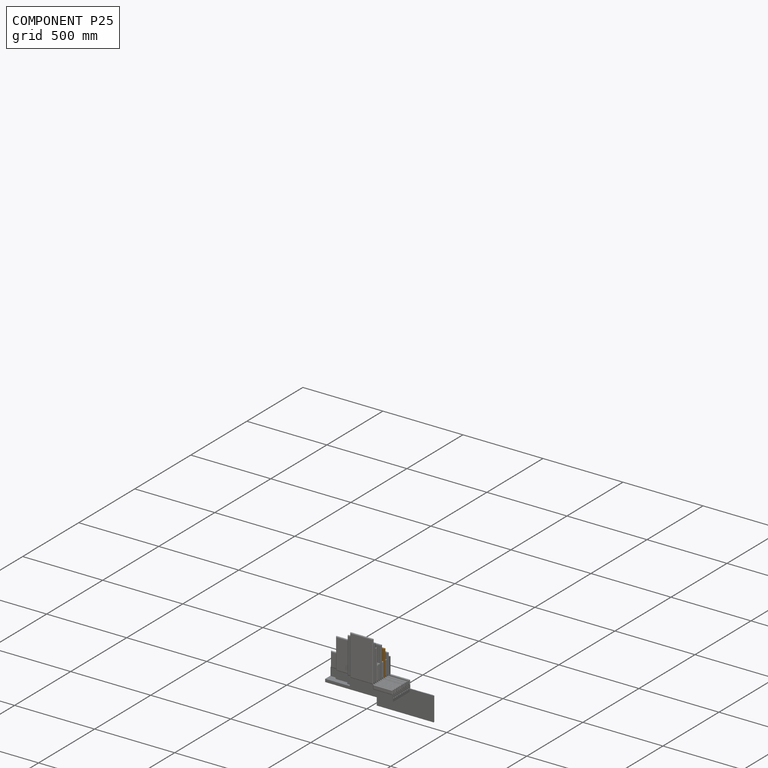
[diagram: component P25 — assembled]
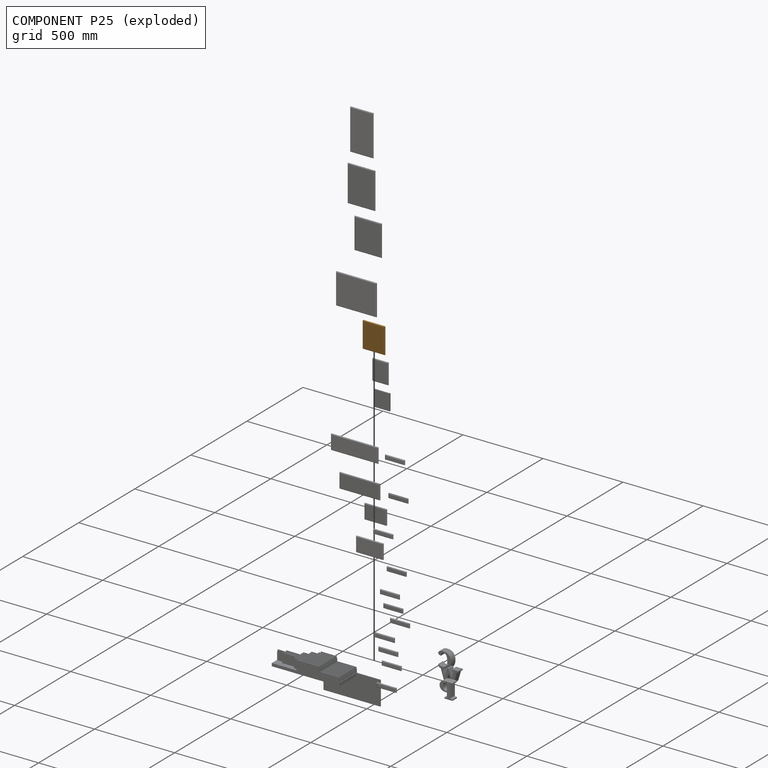
[diagram: component P25 — exploded]
COMPONENT P25 — geometry summary (no construction recipe available for this part):
  bounding box: 162.0 x 139.0 x 10.0 mm
  B-rep topology: 1 solid, 11 faces, 48 edges
  volume: 112097 mm^3 (50% of its bounding box)
  symmetry: 2-fold rotationally symmetric about the z axis; mirror-symmetric across its x mid-plane, y mid-plane
Held by: FASTENED mate "Fastened 11" to P7.
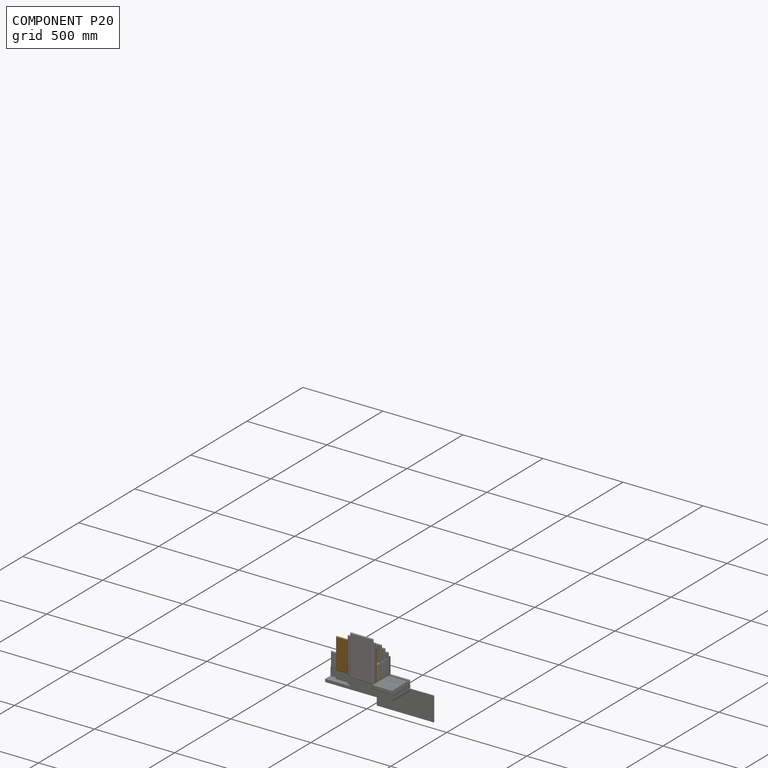
[diagram: component P20 — assembled]
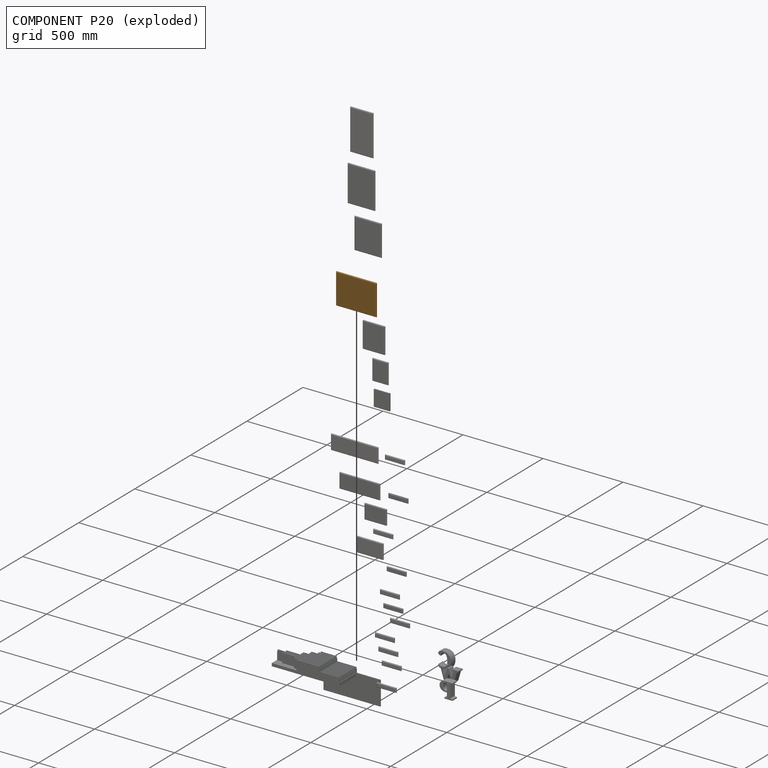
[diagram: component P20 — exploded]
COMPONENT P20 — geometry summary (no construction recipe available for this part):
  bounding box: 253.0 x 193.0 x 10.0 mm
  B-rep topology: 1 solid, 11 faces, 48 edges
  volume: 242864 mm^3 (50% of its bounding box)
  symmetry: 2-fold rotationally symmetric about the z axis; mirror-symmetric across its x mid-plane, y mid-plane
Held by: FASTENED mate "Fastened 21" to P7.
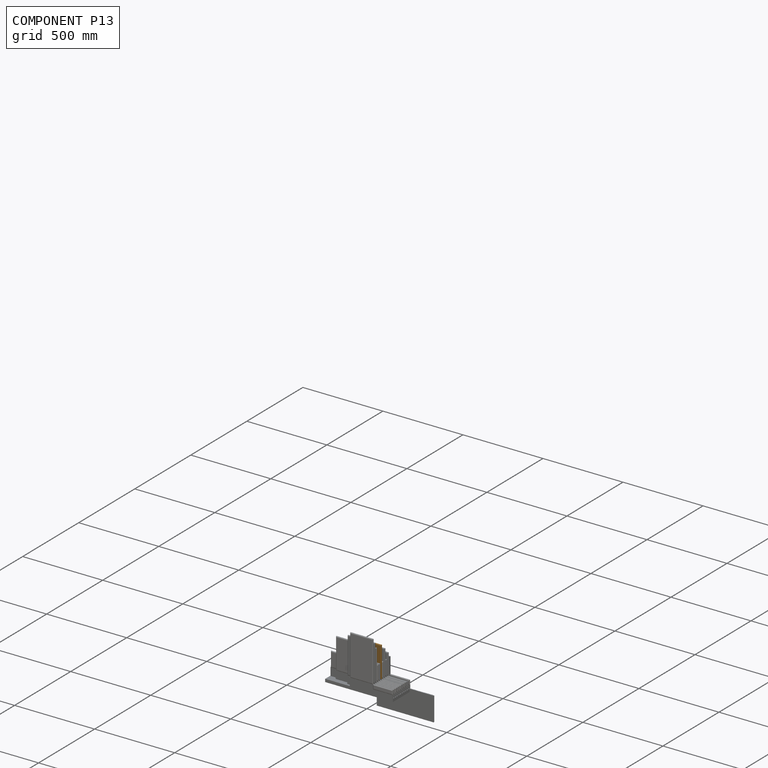
[diagram: component P13 — assembled]
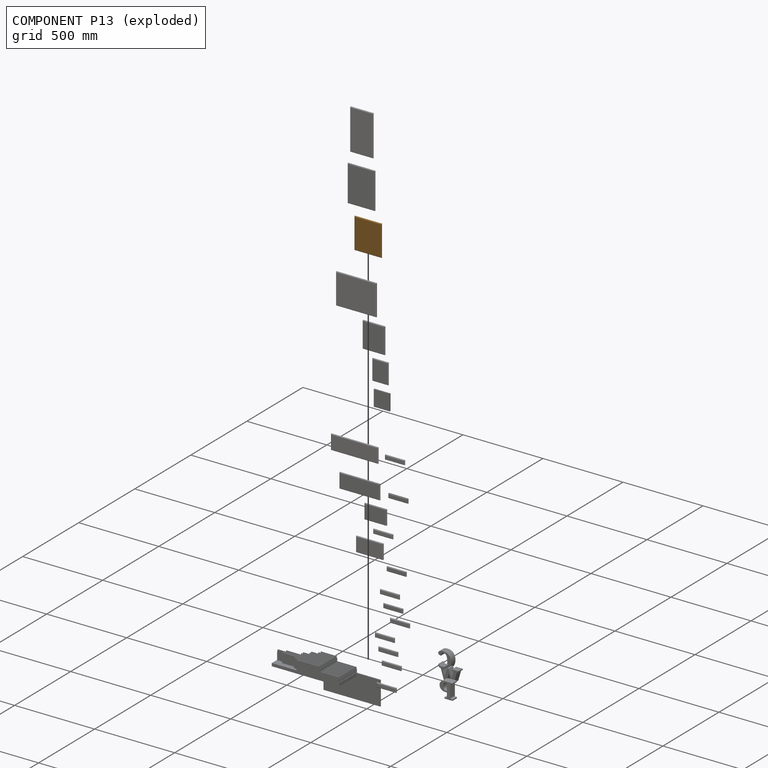
[diagram: component P13 — exploded]
COMPONENT P13 — geometry summary (no construction recipe available for this part):
  bounding box: 193.0 x 170.0 x 10.0 mm
  B-rep topology: 1 solid, 11 faces, 48 edges
  volume: 163422 mm^3 (50% of its bounding box)
  symmetry: 2-fold rotationally symmetric about the z axis; mirror-symmetric across its x mid-plane, y mid-plane
Held by: FASTENED mate "Fastened 15" to P7.
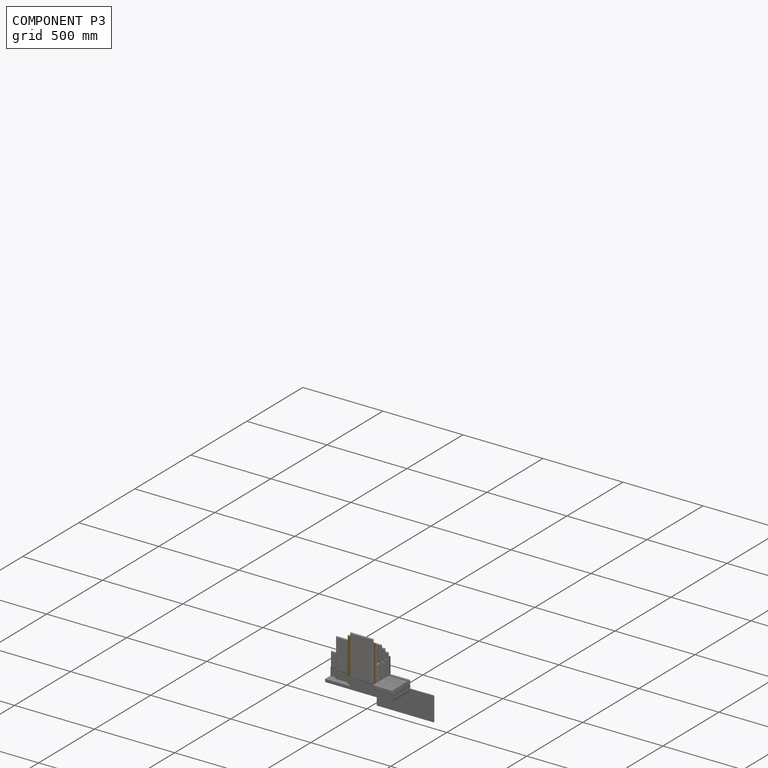
[diagram: component P3 — assembled]
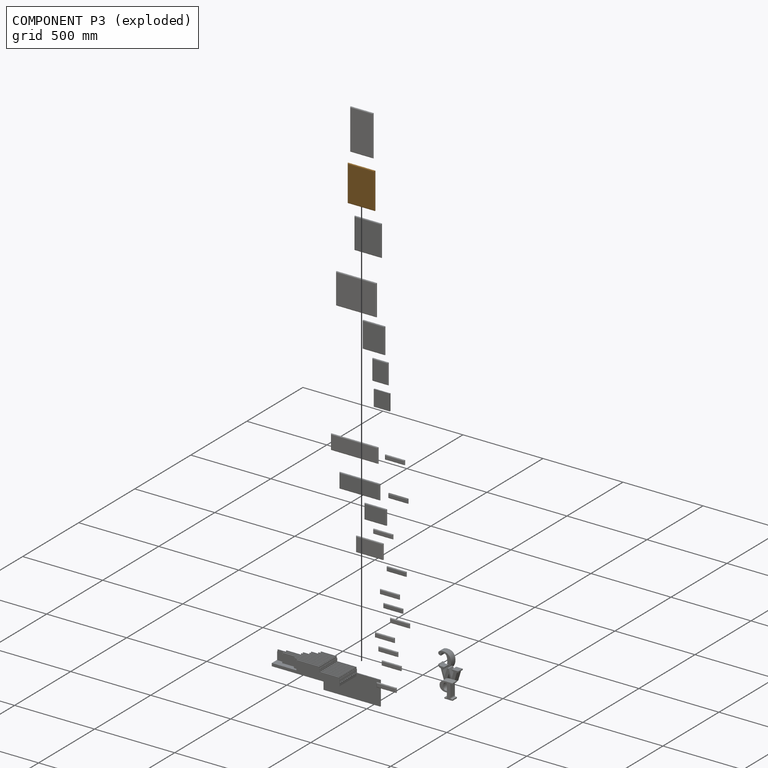
[diagram: component P3 — exploded]
COMPONENT P3 — geometry summary (no construction recipe available for this part):
  bounding box: 227.0 x 170.0 x 10.0 mm
  B-rep topology: 1 solid, 11 faces, 48 edges
  volume: 192443 mm^3 (50% of its bounding box)
  symmetry: 2-fold rotationally symmetric about the z axis; mirror-symmetric across its x mid-plane, y mid-plane
Held by: FASTENED mate "Fastened 23" to P7.
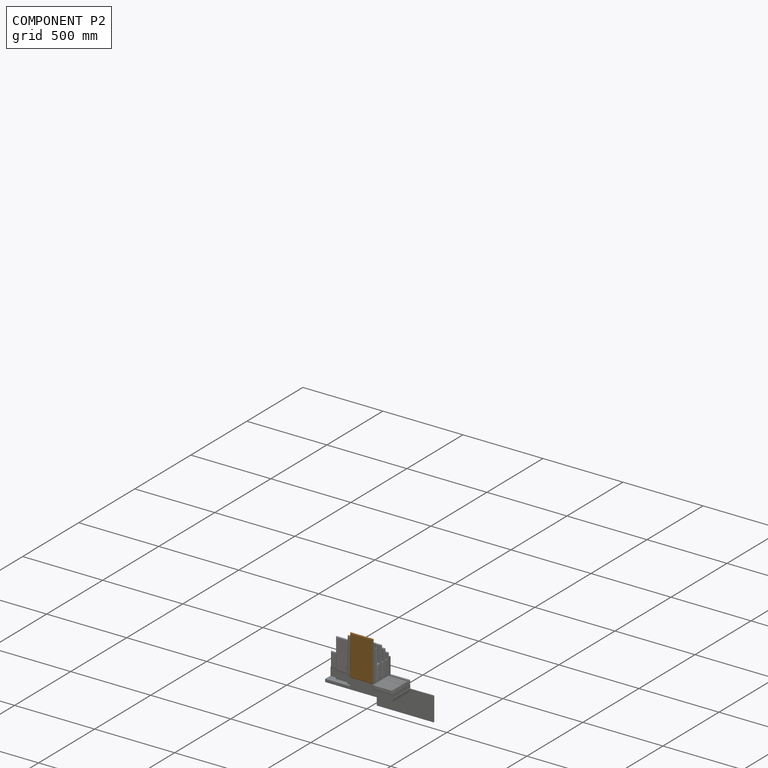
[diagram: component P2 — assembled]
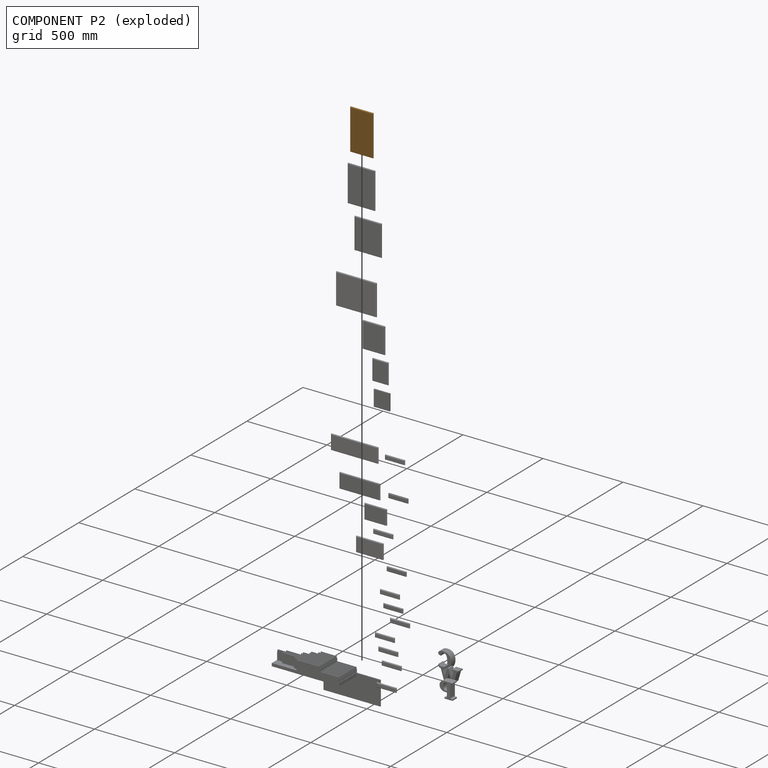
[diagram: component P2 — exploded]
COMPONENT P2 — geometry summary (no construction recipe available for this part):
  bounding box: 255.0 x 144.0 x 10.0 mm
  B-rep topology: 1 solid, 11 faces, 48 edges
  volume: 183397 mm^3 (50% of its bounding box)
  symmetry: 2-fold rotationally symmetric about the z axis; mirror-symmetric across its x mid-plane, y mid-plane
Held by: FASTENED mate "Fastened 25" to P7.
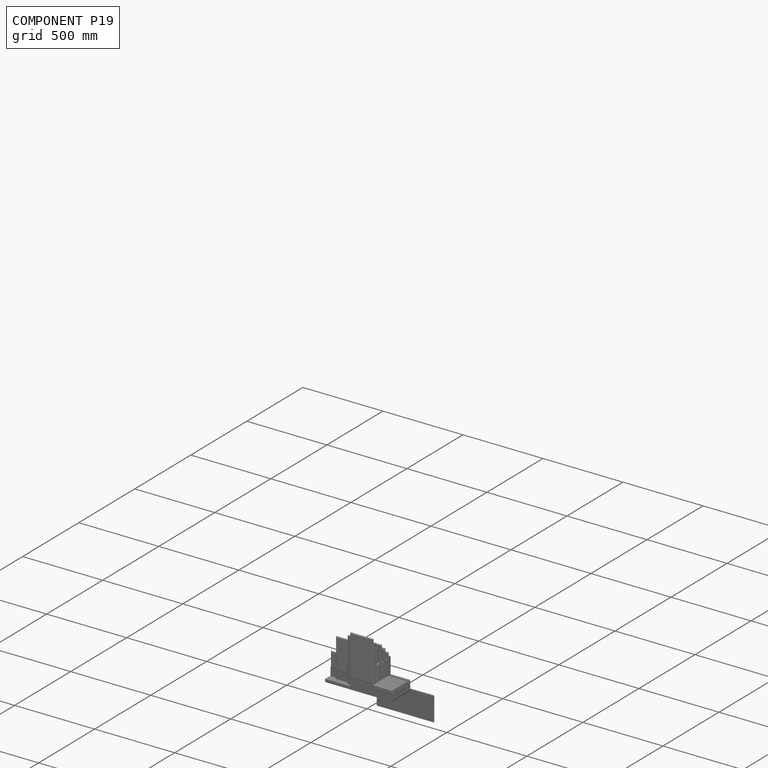
[diagram: component P19 — assembled]
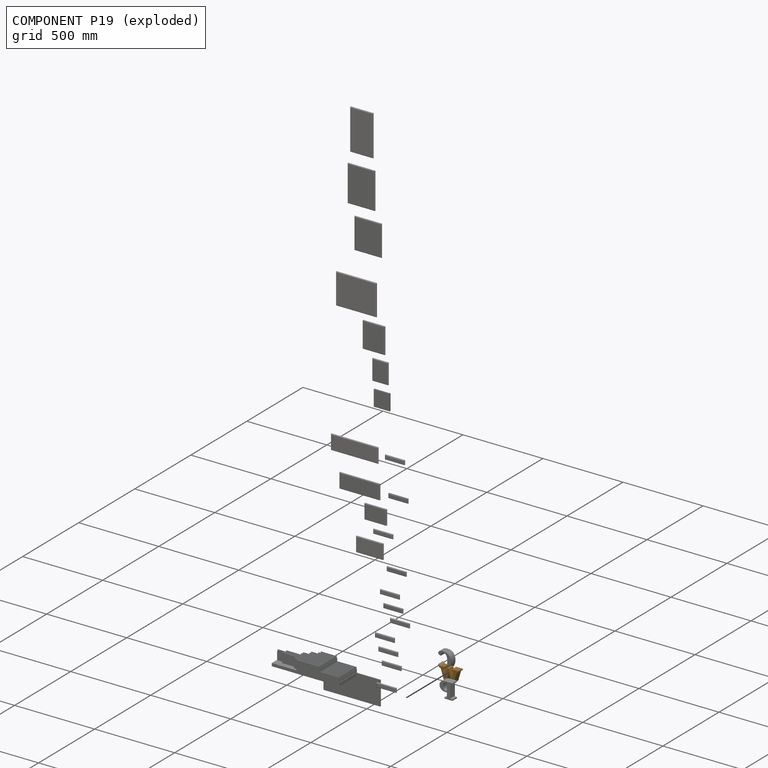
[diagram: component P19 — exploded]
COMPONENT P19 — geometry summary (no construction recipe available for this part):
  bounding box: 119.4 x 74.5 x 40.0 mm
  B-rep topology: 1 solid, 53 faces, 306 edges
  volume: 162968 mm^3 (46% of its bounding box)
  symmetry: mirror-symmetric across its y mid-plane
Held by: FASTENED mate "Fastened 2" to P7.
